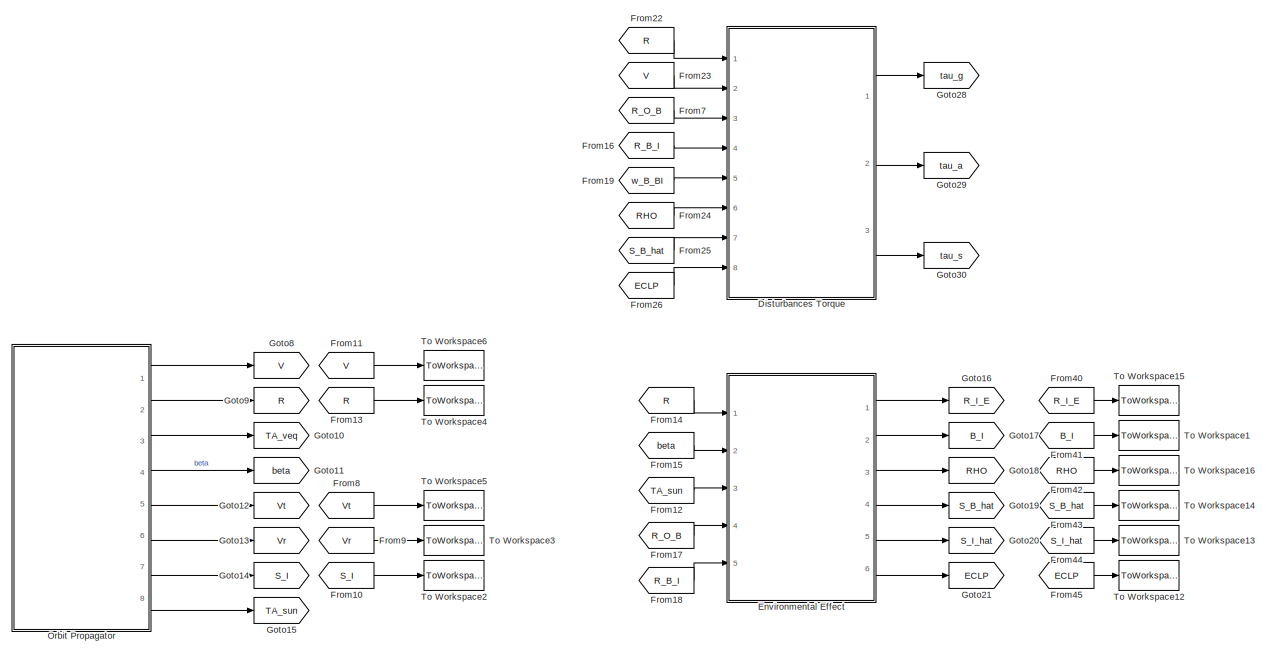
[diagram: root canvas - part 1/3, top center region]
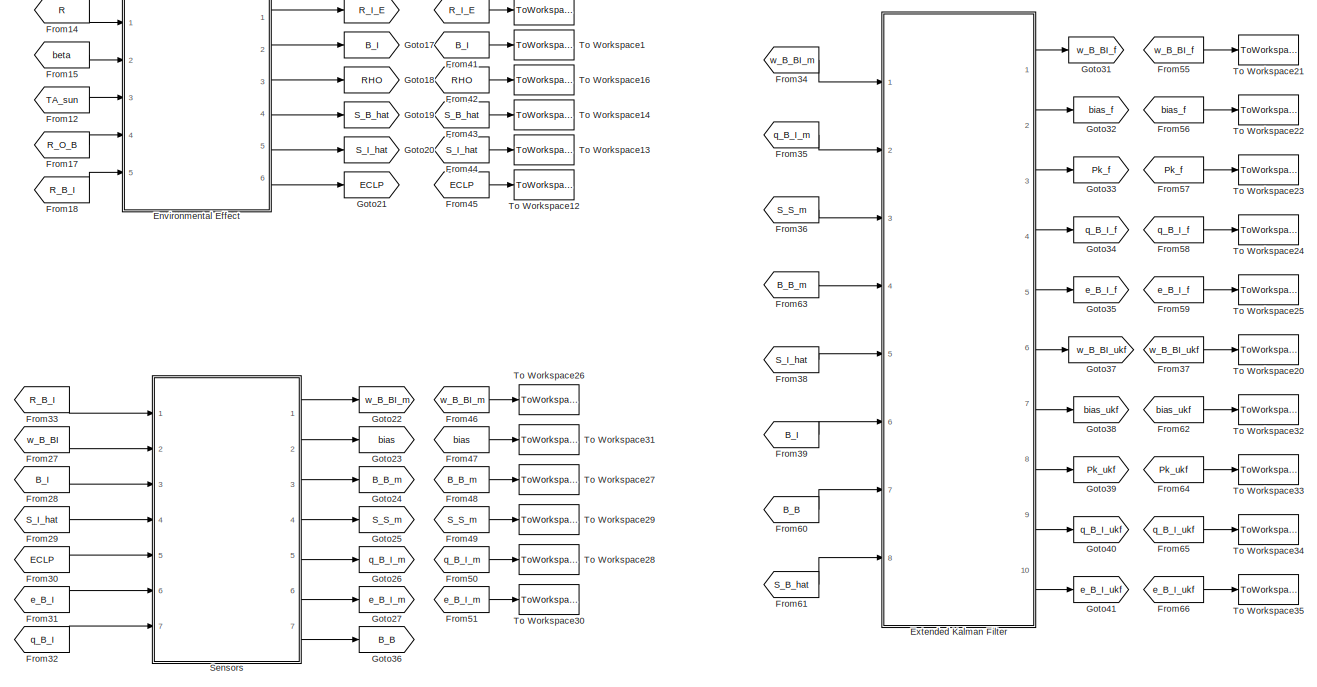
[diagram: root canvas - part 2/3, bottom right region]
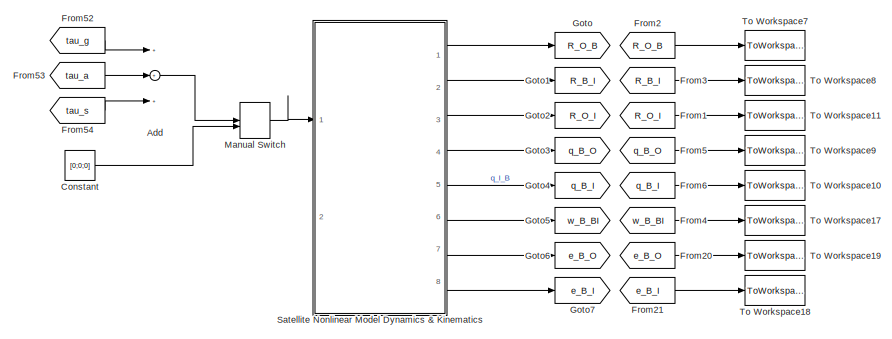
[diagram: root canvas - part 3/3, bottom left region]
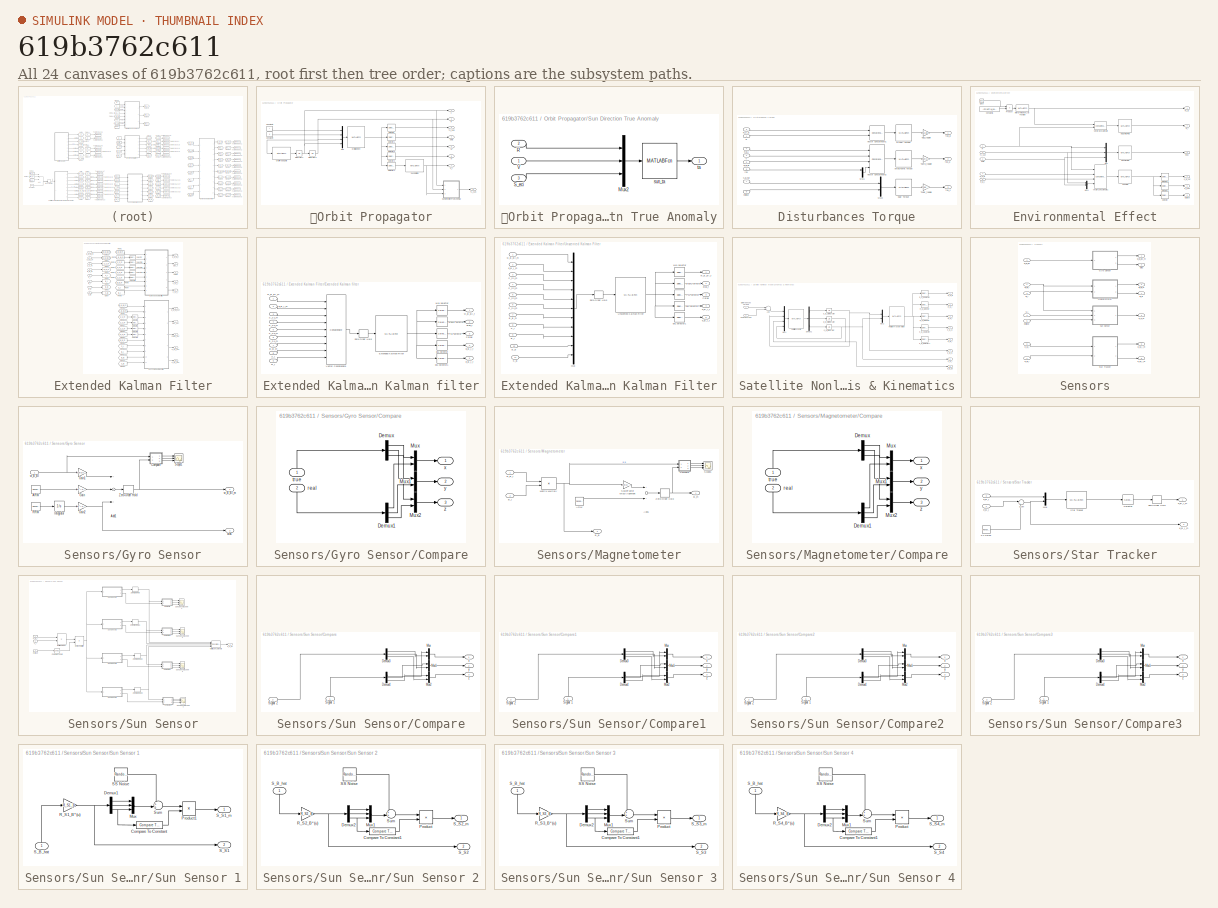
[diagram: thumbnail index - all 24 canvases of the model, root first then tree order]
MODEL slx_619b3762c611
KIND model
CONFIG AbsTol = auto
CONFIG EnableMultiTasking = off
CONFIG FixedStep = dt
CONFIG MaxStep = auto
CONFIG MinStep = auto
CONFIG RelTol = 1e-3
CONFIG SampleTimeConstraint = Unconstrained
CONFIG Solver = FixedStepAuto
CONFIG SolverName = FixedStepAuto
CONFIG StartTime = 0.0
CONFIG StopTime = tdur
BLOCK [SubSystem] 	Orbit Propagator
  Ports = [0, 8]
  RequestExecContextInheritance = off
BLOCK [Constant] 	Orbit Propagator/Constant1
  Value = i
  VectorParams1D = off
BLOCK [Constant] 	Orbit Propagator/Constant4
  Value = e
  VectorParams1D = off
BLOCK [Integrator] 	Orbit Propagator/Integrator2
  InitialCondition = V_0
  Ports = [1, 1]
BLOCK [Integrator] 	Orbit Propagator/Integrator3
  InitialCondition = R_0
  Ports = [1, 1]
BLOCK [Mux] 	Orbit Propagator/Mux
  DisplayOption = bar
  Ports = [4, 1]
BLOCK [MATLABFcn] 	Orbit Propagator/Orbit Element
  MATLABFcn = orbitelement
  Output1D = off
  Ports = [1, 1]
BLOCK [MATLABFcn] 	Orbit Propagator/Orbit Propagate
  MATLABFcn = orbitpropagate
  Output1D = off
  OutputDimensions = [3,1]
  Ports = [1, 1]
BLOCK [Outport] 	Orbit Propagator/R
  IconDisplay = Port number
  Port = 2
BLOCK [Outport] 	Orbit Propagator/S_I 
  IconDisplay = Port number
  Port = 7
BLOCK [Selector] 	Orbit Propagator/Selector
  InputPortWidth = 9
  Ports = [1, 1]
BLOCK [Selector] 	Orbit Propagator/Selector1
  Indices = 2
  InputPortWidth = 9
  Ports = [1, 1]
BLOCK [Selector] 	Orbit Propagator/Selector2
  Indices = [3:5]
  InputPortWidth = 9
  Ports = [1, 1]
BLOCK [Selector] 	Orbit Propagator/Selector3
  Indices = [6:8]
  InputPortWidth = 9
  Ports = [1, 1]
BLOCK [Selector] 	Orbit Propagator/Selector4
  Indices = 9
  InputPortWidth = 9
  Ports = [1, 1]
BLOCK [SubSystem] 	Orbit Propagator/Sun Direction True Anomaly
  Ports = [3, 1]
  RequestExecContextInheritance = off
BLOCK [Mux] 	Orbit Propagator/Sun Direction True Anomaly/Mux2
  DisplayOption = bar
  Inputs = 3
  Ports = [3, 1]
BLOCK [Inport] 	Orbit Propagator/Sun Direction True Anomaly/R
  IconDisplay = Port number
  Port = 2
BLOCK [Inport] 	Orbit Propagator/Sun Direction True Anomaly/S_eci
  IconDisplay = Port number
  Port = 3
BLOCK [Inport] 	Orbit Propagator/Sun Direction True Anomaly/V
  IconDisplay = Port number
BLOCK [MATLABFcn] 	Orbit Propagator/Sun Direction True Anomaly/sun_ta
  MATLABFcn = sun_ta
  Output1D = off
  OutputDimensions = [1,1]
  Ports = [1, 1]
BLOCK [Outport] 	Orbit Propagator/Sun Direction True Anomaly/ta
  IconDisplay = Port number
BLOCK [MATLABFcn] 	Orbit Propagator/Sun Rotation
  MATLABFcn = sun_rotation
  Output1D = off
  OutputDimensions = [3,1]
  Ports = [1, 1]
BLOCK [Outport] 	Orbit Propagator/TA_sun
  IconDisplay = Port number
  Port = 8
BLOCK [Outport] 	Orbit Propagator/TA_veq
  IconDisplay = Port number
  Port = 3
BLOCK [Outport] 	Orbit Propagator/V
  IconDisplay = Port number
BLOCK [Outport] 	Orbit Propagator/Vr
  IconDisplay = Port number
  Port = 6
BLOCK [Outport] 	Orbit Propagator/Vt
  IconDisplay = Port number
  Port = 5
BLOCK [Outport] 	Orbit Propagator/beta
  IconDisplay = Port number
  Port = 4
BLOCK [Sum] Add
  InputSameDT = off
  Inputs = +++
  OutDataTypeStr = Inherit: Inherit via internal rule
  Ports = [3, 1]
  SaturateOnIntegerOverflow = off
BLOCK [Constant] Constant
  Value = [0;0;0]
BLOCK [SubSystem] Disturbances Torque
  Ports = [8, 3]
  RequestExecContextInheritance = off
BLOCK [MATLABFcn] Disturbances Torque/Aerodynamic Torque
  MATLABFcn = aerodynamic_torque
  Output1D = off
  OutputDimensions = [3,1]
  Ports = [1, 1]
BLOCK [MATLABFcn] Disturbances Torque/Gravity Torque
  MATLABFcn = gravity_torque
  Output1D = off
  OutputDimensions = [3,1]
  Ports = [1, 1]
BLOCK [Mux] Disturbances Torque/Mux1
  DisplayOption = bar
  Inputs = 3
  Ports = [3, 1]
BLOCK [Mux] Disturbances Torque/Mux2
  DisplayOption = bar
  Inputs = 2
  Ports = [2, 1]
BLOCK [Inport] Disturbances Torque/R
  IconDisplay = Port number
BLOCK [Inport] Disturbances Torque/R_B_I
  IconDisplay = Port number
  Port = 4
BLOCK [Inport] Disturbances Torque/R_O_B
  IconDisplay = Port number
  Port = 3
BLOCK [Inport] Disturbances Torque/S_B_hat
  IconDisplay = Port number
  Port = 7
BLOCK [MATLABFcn] Disturbances Torque/Solar Torque
  MATLABFcn = solar_torque
  Output1D = off
  OutputDimensions = [3,1]
  Ports = [1, 1]
BLOCK [Gain] Disturbances Torque/Taero_toggle
  Gain = Taero_toggle
  OutDataTypeStr = Inherit: Inherit via internal rule
  ParamDataTypeStr = Inherit: Inherit via internal rule
  SaturateOnIntegerOverflow = off
BLOCK [Gain] Disturbances Torque/Tgg_toggle
  Gain = Tgg_toggle
  OutDataTypeStr = Inherit: Inherit via internal rule
  ParamDataTypeStr = Inherit: Inherit via internal rule
  SaturateOnIntegerOverflow = off
BLOCK [Gain] Disturbances Torque/Tsolar_toggle
  Gain = Tsolar_toggle
  OutDataTypeStr = Inherit: Inherit via internal rule
  ParamDataTypeStr = Inherit: Inherit via internal rule
  SaturateOnIntegerOverflow = off
BLOCK [Inport] Disturbances Torque/V
  IconDisplay = Port number
  Port = 2
BLOCK [Concatenate] Disturbances Torque/Vector Concatenate1
  ConcatenateDimension = 2
  Mode = Multidimensional array
  Ports = [2, 1]
BLOCK [Concatenate] Disturbances Torque/Vector Concatenate2
  ConcatenateDimension = 2
  Mode = Multidimensional array
  NumInputs = 4
  Ports = [4, 1]
BLOCK [Inport] Disturbances Torque/eclipse
  IconDisplay = Port number
  Port = 8
BLOCK [Inport] Disturbances Torque/rho
  IconDisplay = Port number
  Port = 6
BLOCK [Outport] Disturbances Torque/tau_a
  IconDisplay = Port number
  Port = 2
BLOCK [Outport] Disturbances Torque/tau_g
  IconDisplay = Port number
BLOCK [Outport] Disturbances Torque/tau_s
  IconDisplay = Port number
  Port = 3
BLOCK [Inport] Disturbances Torque/w_B_BI
  IconDisplay = Port number
  Port = 5
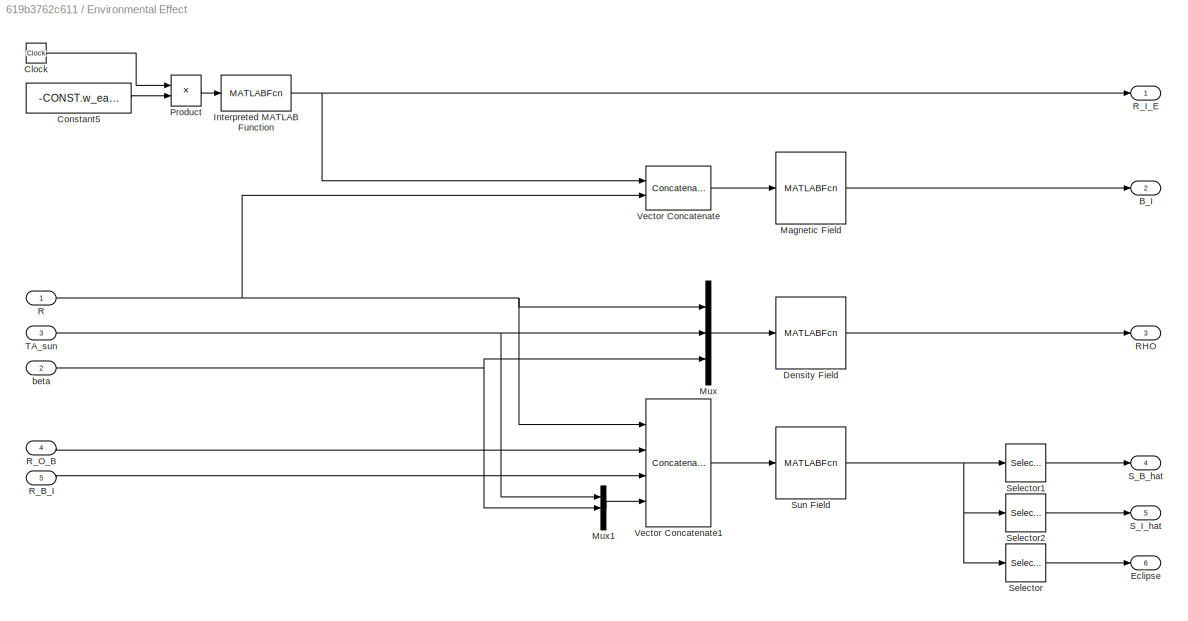
BLOCK [SubSystem] Environmental Effect
  Ports = [5, 6]
  RequestExecContextInheritance = off
BLOCK [Outport] Environmental Effect/B_I
  IconDisplay = Port number
  Port = 2
BLOCK [Clock] Environmental Effect/Clock
BLOCK [Constant] Environmental Effect/Constant5
  Value = -CONST.w_earth(3)
BLOCK [MATLABFcn] Environmental Effect/Density Field
  MATLABFcn = density_field
  Output1D = off
  OutputDimensions = 1
  Ports = [1, 1]
BLOCK [Outport] Environmental Effect/Eclipse
  IconDisplay = Port number
  Port = 6
BLOCK [MATLABFcn] Environmental Effect/Interpreted MATLAB Function
  MATLABFcn = DCM3
  Output1D = off
  OutputDimensions = [3,3]
  Ports = [1, 1]
BLOCK [MATLABFcn] Environmental Effect/Magnetic Field
  MATLABFcn = magnetic_field
  Output1D = off
  OutputDimensions = [3,1]
  Ports = [1, 1]
BLOCK [Mux] Environmental Effect/Mux
  DisplayOption = bar
  Inputs = 3
  Ports = [3, 1]
BLOCK [Mux] Environmental Effect/Mux1
  DisplayOption = bar
  Inputs = 3
  Ports = [3, 1]
BLOCK [Product] Environmental Effect/Product
  InputSameDT = off
  OutDataTypeStr = Inherit: Inherit via internal rule
  Ports = [2, 1]
  RndMeth = Floor
  SaturateOnIntegerOverflow = off
BLOCK [Inport] Environmental Effect/R
  IconDisplay = Port number
BLOCK [Outport] Environmental Effect/RHO
  IconDisplay = Port number
  Port = 3
BLOCK [Inport] Environmental Effect/R_B_I
  IconDisplay = Port number
  Port = 5
BLOCK [Outport] Environmental Effect/R_I_E
  IconDisplay = Port number
BLOCK [Inport] Environmental Effect/R_O_B
  IconDisplay = Port number
  Port = 4
BLOCK [Outport] Environmental Effect/S_B_hat
  IconDisplay = Port number
  Port = 4
BLOCK [Outport] Environmental Effect/S_I_hat
  IconDisplay = Port number
  Port = 5
BLOCK [Selector] Environmental Effect/Selector
  IndexOptions = Index vector (dialog),Index vector (dialog)
  Indices = 3,3
  InputPortWidth = 3
  NumberOfDimensions = 2
  OutputSizes = 1,1
  Ports = [1, 1]
BLOCK [Selector] Environmental Effect/Selector1
  IndexOptions = Index vector (dialog),Index vector (dialog)
  Indices = [1:3],1
  InputPortWidth = 3
  NumberOfDimensions = 2
  OutputSizes = 1,1
  Ports = [1, 1]
BLOCK [Selector] Environmental Effect/Selector2
  IndexOptions = Index vector (dialog),Index vector (dialog)
  Indices = [1:3],2
  InputPortWidth = 3
  NumberOfDimensions = 2
  OutputSizes = 1,1
  Ports = [1, 1]
BLOCK [MATLABFcn] Environmental Effect/Sun Field
  MATLABFcn = sun_field
  Output1D = off
  OutputDimensions = [3,3]
  Ports = [1, 1]
BLOCK [Inport] Environmental Effect/TA_sun
  IconDisplay = Port number
  Port = 3
BLOCK [Concatenate] Environmental Effect/Vector Concatenate
  ConcatenateDimension = 2
  Mode = Multidimensional array
  Ports = [2, 1]
BLOCK [Concatenate] Environmental Effect/Vector Concatenate1
  ConcatenateDimension = 2
  Mode = Multidimensional array
  NumInputs = 4
  Ports = [4, 1]
BLOCK [Inport] Environmental Effect/beta
  IconDisplay = Port number
  Port = 2
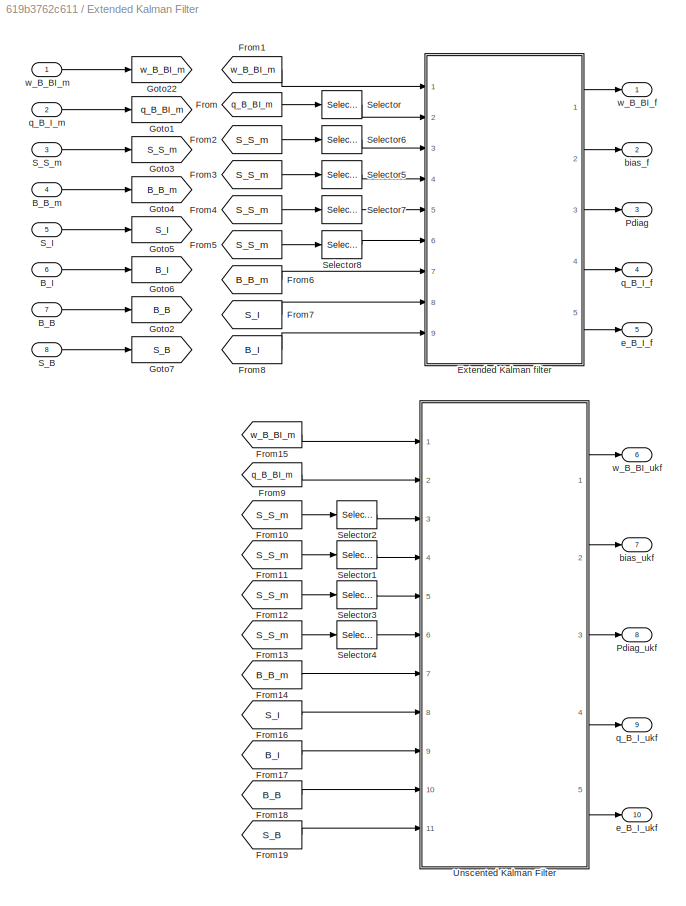
BLOCK [SubSystem] Extended Kalman Filter
  Ports = [8, 10]
  RequestExecContextInheritance = off
BLOCK [Inport] Extended Kalman Filter/B_B
  IconDisplay = Port number
  Port = 7
BLOCK [Inport] Extended Kalman Filter/B_B_m
  IconDisplay = Port number
  Port = 4
BLOCK [Inport] Extended Kalman Filter/B_I
  IconDisplay = Port number
  Port = 6
BLOCK [SubSystem] Extended Kalman Filter/Extended Kalman filter
  Ports = [9, 5]
  RequestExecContextInheritance = off
BLOCK [Inport] Extended Kalman Filter/Extended Kalman filter/B_B_m
  IconDisplay = Port number
  Port = 7
BLOCK [Inport] Extended Kalman Filter/Extended Kalman filter/B_I
  IconDisplay = Port number
  Port = 9
BLOCK [MATLABFcn] Extended Kalman Filter/Extended Kalman filter/Extended Kalman Filter
  MATLABFcn = extended_kalman_filter
  Output1D = off
  OutputDimensions = [6,9]
  Ports = [1, 1]
BLOCK [Outport] Extended Kalman Filter/Extended Kalman filter/Pdiag
  IconDisplay = Port number
  Port = 3
BLOCK [Selector] Extended Kalman Filter/Extended Kalman filter/Pk1 selector
  IndexOptions = Index vector (dialog),Index vector (dialog)
  Indices = [1:6],[2:7]
  InputPortWidth = 3
  NumberOfDimensions = 2
  OutputSizes = 1,1
  Ports = [1, 1]
BLOCK [Inport] Extended Kalman Filter/Extended Kalman filter/S_I
  IconDisplay = Port number
  Port = 8
BLOCK [Inport] Extended Kalman Filter/Extended Kalman filter/S_S1_m
  IconDisplay = Port number
  Port = 3
BLOCK [Inport] Extended Kalman Filter/Extended Kalman filter/S_S2_m
  IconDisplay = Port number
  Port = 4
BLOCK [Inport] Extended Kalman Filter/Extended Kalman filter/S_S3_m
  IconDisplay = Port number
  Port = 5
BLOCK [Inport] Extended Kalman Filter/Extended Kalman filter/S_S4_m
  IconDisplay = Port number
  Port = 6
BLOCK [Concatenate] Extended Kalman Filter/Extended Kalman filter/Vector Concatenate
  ConcatenateDimension = 2
  Mode = Multidimensional array
  NumInputs = 9
  Ports = [9, 1]
BLOCK [ZeroOrderHold] Extended Kalman Filter/Extended Kalman filter/Zero-Order Hold
  SampleTime = dt
BLOCK [Outport] Extended Kalman Filter/Extended Kalman filter/bias_f
  IconDisplay = Port number
  Port = 2
BLOCK [Selector] Extended Kalman Filter/Extended Kalman filter/biask1 selector
  IndexOptions = Index vector (dialog),Index vector (dialog)
  Indices = [4:6],1
  InputPortWidth = 3
  NumberOfDimensions = 2
  OutputSizes = 1,1
  Ports = [1, 1]
BLOCK [Outport] Extended Kalman Filter/Extended Kalman filter/e_B_I_f
  IconDisplay = Port number
  Port = 5
BLOCK [Outport] Extended Kalman Filter/Extended Kalman filter/q_B_I_f
  IconDisplay = Port number
  Port = 4
BLOCK [Inport] Extended Kalman Filter/Extended Kalman filter/q_B_I_m
  IconDisplay = Port number
  Port = 2
BLOCK [Selector] Extended Kalman Filter/Extended Kalman filter/qk1 selector
  IndexOptions = Index vector (dialog),Index vector (dialog)
  Indices = [1:4],8
  InputPortWidth = 3
  NumberOfDimensions = 2
  OutputSizes = 1,1
  Ports = [1, 1]
BLOCK [Selector] Extended Kalman Filter/Extended Kalman filter/qk1 selector1
  IndexOptions = Index vector (dialog),Index vector (dialog)
  Indices = [1:3],9
  InputPortWidth = 3
  NumberOfDimensions = 2
  OutputSizes = 1,1
  Ports = [1, 1]
BLOCK [Outport] Extended Kalman Filter/Extended Kalman filter/w_B_BI_f
  IconDisplay = Port number
BLOCK [Inport] Extended Kalman Filter/Extended Kalman filter/w_B_BI_m
  IconDisplay = Port number
BLOCK [Selector] Extended Kalman Filter/Extended Kalman filter/wk1 selector
  IndexOptions = Index vector (dialog),Index vector (dialog)
  Indices = [1:3],1
  InputPortWidth = 3
  NumberOfDimensions = 2
  OutputSizes = 1,1
  Ports = [1, 1]
BLOCK [From] Extended Kalman Filter/From
  GotoTag = q_B_BI_m
BLOCK [From] Extended Kalman Filter/From1
  GotoTag = w_B_BI_m
BLOCK [From] Extended Kalman Filter/From10
  GotoTag = S_S_m
BLOCK [From] Extended Kalman Filter/From11
  GotoTag = S_S_m
BLOCK [From] Extended Kalman Filter/From12
  GotoTag = S_S_m
BLOCK [From] Extended Kalman Filter/From13
  GotoTag = S_S_m
BLOCK [From] Extended Kalman Filter/From14
  GotoTag = B_B_m
BLOCK [From] Extended Kalman Filter/From15
  GotoTag = w_B_BI_m
BLOCK [From] Extended Kalman Filter/From16
  GotoTag = S_I
BLOCK [From] Extended Kalman Filter/From17
  GotoTag = B_I
BLOCK [From] Extended Kalman Filter/From18
  GotoTag = B_B
BLOCK [From] Extended Kalman Filter/From19
  GotoTag = S_B
BLOCK [From] Extended Kalman Filter/From2
  GotoTag = S_S_m
BLOCK [From] Extended Kalman Filter/From3
  GotoTag = S_S_m
BLOCK [From] Extended Kalman Filter/From4
  GotoTag = S_S_m
BLOCK [From] Extended Kalman Filter/From5
  GotoTag = S_S_m
BLOCK [From] Extended Kalman Filter/From6
  GotoTag = B_B_m
BLOCK [From] Extended Kalman Filter/From7
  GotoTag = S_I
BLOCK [From] Extended Kalman Filter/From8
  GotoTag = B_I
BLOCK [From] Extended Kalman Filter/From9
  GotoTag = q_B_BI_m
BLOCK [Goto] Extended Kalman Filter/Goto1
  GotoTag = q_B_BI_m
BLOCK [Goto] Extended Kalman Filter/Goto2
  GotoTag = B_B
BLOCK [Goto] Extended Kalman Filter/Goto22
  GotoTag = w_B_BI_m
BLOCK [Goto] Extended Kalman Filter/Goto3
  GotoTag = S_S_m
BLOCK [Goto] Extended Kalman Filter/Goto4
  GotoTag = B_B_m
BLOCK [Goto] Extended Kalman Filter/Goto5
  GotoTag = S_I
BLOCK [Goto] Extended Kalman Filter/Goto6
  GotoTag = B_I
BLOCK [Goto] Extended Kalman Filter/Goto7
  GotoTag = S_B
BLOCK [Outport] Extended Kalman Filter/Pdiag
  IconDisplay = Port number
  Port = 3
BLOCK [Outport] Extended Kalman Filter/Pdiag_ukf
  IconDisplay = Port number
  Port = 8
BLOCK [Inport] Extended Kalman Filter/S_B
  IconDisplay = Port number
  Port = 8
BLOCK [Inport] Extended Kalman Filter/S_I
  IconDisplay = Port number
  Port = 5
BLOCK [Inport] Extended Kalman Filter/S_S_m
  IconDisplay = Port number
  Port = 3
BLOCK [Selector] Extended Kalman Filter/Selector
  Indices = [2:4]
  InputPortWidth = 4
  Ports = [1, 1]
BLOCK [Selector] Extended Kalman Filter/Selector1
  IndexOptions = Index vector (dialog),Index vector (dialog)
  Indices = [1:3],2
  InputPortWidth = 4
  NumberOfDimensions = 2
  OutputSizes = 1,1
  Ports = [1, 1]
BLOCK [Selector] Extended Kalman Filter/Selector2
  IndexOptions = Index vector (dialog),Index vector (dialog)
  Indices = [1:3],1
  InputPortWidth = 4
  NumberOfDimensions = 2
  OutputSizes = 1,1
  Ports = [1, 1]
BLOCK [Selector] Extended Kalman Filter/Selector3
  IndexOptions = Index vector (dialog),Index vector (dialog)
  Indices = [1:3],3
  InputPortWidth = 4
  NumberOfDimensions = 2
  OutputSizes = 1,1
  Ports = [1, 1]
BLOCK [Selector] Extended Kalman Filter/Selector4
  IndexOptions = Index vector (dialog),Index vector (dialog)
  Indices = [1:3],4
  InputPortWidth = 4
  NumberOfDimensions = 2
  OutputSizes = 1,1
  Ports = [1, 1]
BLOCK [Selector] Extended Kalman Filter/Selector5
  IndexOptions = Index vector (dialog),Index vector (dialog)
  Indices = [1:3],2
  InputPortWidth = 4
  NumberOfDimensions = 2
  OutputSizes = 1,1
  Ports = [1, 1]
BLOCK [Selector] Extended Kalman Filter/Selector6
  IndexOptions = Index vector (dialog),Index vector (dialog)
  Indices = [1:3],1
  InputPortWidth = 4
  NumberOfDimensions = 2
  OutputSizes = 1,1
  Ports = [1, 1]
BLOCK [Selector] Extended Kalman Filter/Selector7
  IndexOptions = Index vector (dialog),Index vector (dialog)
  Indices = [1:3],3
  InputPortWidth = 4
  NumberOfDimensions = 2
  OutputSizes = 1,1
  Ports = [1, 1]
BLOCK [Selector] Extended Kalman Filter/Selector8
  IndexOptions = Index vector (dialog),Index vector (dialog)
  Indices = [1:3],4
  InputPortWidth = 4
  NumberOfDimensions = 2
  OutputSizes = 1,1
  Ports = [1, 1]
BLOCK [SubSystem] Extended Kalman Filter/Unscented Kalman Filter
  Ports = [11, 5]
  RequestExecContextInheritance = off
BLOCK [Inport] Extended Kalman Filter/Unscented Kalman Filter/B_B
  IconDisplay = Port number
  Port = 10
BLOCK [Inport] Extended Kalman Filter/Unscented Kalman Filter/B_B_m
  IconDisplay = Port number
  Port = 7
BLOCK [Inport] Extended Kalman Filter/Unscented Kalman Filter/B_I
  IconDisplay = Port number
  Port = 9
BLOCK [Mux] Extended Kalman Filter/Unscented Kalman Filter/Mux
  DisplayOption = bar
  Inputs = 11
  Ports = [11, 1]
BLOCK [Outport] Extended Kalman Filter/Unscented Kalman Filter/Pdiag
  IconDisplay = Port number
  Port = 3
BLOCK [Selector] Extended Kalman Filter/Unscented Kalman Filter/Pk1 selector
  IndexOptions = Index vector (dialog),Index vector (dialog)
  Indices = [1:6],[2:7]
  InputPortWidth = 3
  NumberOfDimensions = 2
  OutputSizes = 1,1
  Ports = [1, 1]
BLOCK [Inport] Extended Kalman Filter/Unscented Kalman Filter/S_B 
  IconDisplay = Port number
  Port = 11
BLOCK [Inport] Extended Kalman Filter/Unscented Kalman Filter/S_I
  IconDisplay = Port number
  Port = 8
BLOCK [Inport] Extended Kalman Filter/Unscented Kalman Filter/S_S1_m
  IconDisplay = Port number
  Port = 3
BLOCK [Inport] Extended Kalman Filter/Unscented Kalman Filter/S_S2_m
  IconDisplay = Port number
  Port = 4
BLOCK [Inport] Extended Kalman Filter/Unscented Kalman Filter/S_S3_m
  IconDisplay = Port number
  Port = 5
BLOCK [Inport] Extended Kalman Filter/Unscented Kalman Filter/S_S4_m
  IconDisplay = Port number
  Port = 6
BLOCK [MATLABFcn] Extended Kalman Filter/Unscented Kalman Filter/Unscented Kalman Filter
  MATLABFcn = unscented_kalman_filter
  Output1D = off
  OutputDimensions = [6,9]
  Ports = [1, 1]
  SampleTime = dt
BLOCK [ZeroOrderHold] Extended Kalman Filter/Unscented Kalman Filter/Zero-Order Hold
  SampleTime = dt
BLOCK [Outport] Extended Kalman Filter/Unscented Kalman Filter/bias_f
  IconDisplay = Port number
  Port = 2
BLOCK [Selector] Extended Kalman Filter/Unscented Kalman Filter/biask1 selector
  IndexOptions = Index vector (dialog),Index vector (dialog)
  Indices = [4:6],1
  InputPortWidth = 3
  NumberOfDimensions = 2
  OutputSizes = 1,1
  Ports = [1, 1]
BLOCK [Outport] Extended Kalman Filter/Unscented Kalman Filter/e_B_I_f
  IconDisplay = Port number
  Port = 5
BLOCK [Outport] Extended Kalman Filter/Unscented Kalman Filter/q_B_I_f
  IconDisplay = Port number
  Port = 4
BLOCK [Inport] Extended Kalman Filter/Unscented Kalman Filter/q_B_I_m
  IconDisplay = Port number
  Port = 2
BLOCK [Selector] Extended Kalman Filter/Unscented Kalman Filter/qk1 selector
  IndexOptions = Index vector (dialog),Index vector (dialog)
  Indices = [1:4],8
  InputPortWidth = 3
  NumberOfDimensions = 2
  OutputSizes = 1,1
  Ports = [1, 1]
BLOCK [Selector] Extended Kalman Filter/Unscented Kalman Filter/qk1 selector1
  IndexOptions = Index vector (dialog),Index vector (dialog)
  Indices = [1:3],9
  InputPortWidth = 3
  NumberOfDimensions = 2
  OutputSizes = 1,1
  Ports = [1, 1]
BLOCK [Outport] Extended Kalman Filter/Unscented Kalman Filter/w_B_BI_f
  IconDisplay = Port number
BLOCK [Inport] Extended Kalman Filter/Unscented Kalman Filter/w_B_BI_m
  IconDisplay = Port number
BLOCK [Selector] Extended Kalman Filter/Unscented Kalman Filter/wk1 selector
  IndexOptions = Index vector (dialog),Index vector (dialog)
  Indices = [1:3],1
  InputPortWidth = 3
  NumberOfDimensions = 2
  OutputSizes = 1,1
  Ports = [1, 1]
BLOCK [Outport] Extended Kalman Filter/bias_f
  IconDisplay = Port number
  Port = 2
BLOCK [Outport] Extended Kalman Filter/bias_ukf
  IconDisplay = Port number
  Port = 7
BLOCK [Outport] Extended Kalman Filter/e_B_I_f
  IconDisplay = Port number
  Port = 5
BLOCK [Outport] Extended Kalman Filter/e_B_I_ukf
  IconDisplay = Port number
  Port = 10
BLOCK [Outport] Extended Kalman Filter/q_B_I_f
  IconDisplay = Port number
  Port = 4
BLOCK [Inport] Extended Kalman Filter/q_B_I_m
  IconDisplay = Port number
  Port = 2
BLOCK [Outport] Extended Kalman Filter/q_B_I_ukf
  IconDisplay = Port number
  Port = 9
BLOCK [Outport] Extended Kalman Filter/w_B_BI_f
  IconDisplay = Port number
BLOCK [Inport] Extended Kalman Filter/w_B_BI_m
  IconDisplay = Port number
BLOCK [Outport] Extended Kalman Filter/w_B_BI_ukf
  IconDisplay = Port number
  Port = 6
BLOCK [From] From1
  GotoTag = R_O_I
BLOCK [From] From10
  GotoTag = S_I
BLOCK [From] From11
  GotoTag = V
BLOCK [From] From12
  GotoTag = TA_sun
BLOCK [From] From13
  GotoTag = R
BLOCK [From] From14
  GotoTag = R
BLOCK [From] From15
  GotoTag = beta
BLOCK [From] From16
  GotoTag = R_B_I
BLOCK [From] From17
  GotoTag = R_O_B
BLOCK [From] From18
  GotoTag = R_B_I
BLOCK [From] From19
  GotoTag = w_B_BI
BLOCK [From] From2
  GotoTag = R_O_B
BLOCK [From] From20
  GotoTag = e_B_O
BLOCK [From] From21
  GotoTag = e_B_I
BLOCK [From] From22
  GotoTag = R
BLOCK [From] From23
  GotoTag = V
BLOCK [From] From24
  GotoTag = RHO
BLOCK [From] From25
  GotoTag = S_B_hat
BLOCK [From] From26
  GotoTag = ECLP
BLOCK [From] From27
  GotoTag = w_B_BI
BLOCK [From] From28
  GotoTag = B_I
BLOCK [From] From29
  GotoTag = S_I_hat
BLOCK [From] From3
  GotoTag = R_B_I
BLOCK [From] From30
  GotoTag = ECLP
BLOCK [From] From31
  GotoTag = e_B_I
BLOCK [From] From32
  GotoTag = q_B_I
BLOCK [From] From33
  GotoTag = R_B_I
BLOCK [From] From34
  GotoTag = w_B_BI_m
BLOCK [From] From35
  GotoTag = q_B_I_m
BLOCK [From] From36
  GotoTag = S_S_m
BLOCK [From] From37
  GotoTag = w_B_BI_ukf
BLOCK [From] From38
  GotoTag = S_I_hat
BLOCK [From] From39
  GotoTag = B_I
BLOCK [From] From4
  GotoTag = w_B_BI
BLOCK [From] From40
  GotoTag = R_I_E
BLOCK [From] From41
  GotoTag = B_I
BLOCK [From] From42
  GotoTag = RHO
BLOCK [From] From43
  GotoTag = S_B_hat
BLOCK [From] From44
  GotoTag = S_I_hat
BLOCK [From] From45
  GotoTag = ECLP
BLOCK [From] From46
  GotoTag = w_B_BI_m
BLOCK [From] From47
  GotoTag = bias
BLOCK [From] From48
  GotoTag = B_B_m
BLOCK [From] From49
  GotoTag = S_S_m
BLOCK [From] From5
  GotoTag = q_B_O
BLOCK [From] From50
  GotoTag = q_B_I_m
BLOCK [From] From51
  GotoTag = e_B_I_m
BLOCK [From] From52
  GotoTag = tau_g
BLOCK [From] From53
  GotoTag = tau_a
BLOCK [From] From54
  GotoTag = tau_s
BLOCK [From] From55
  GotoTag = w_B_BI_f
BLOCK [From] From56
  GotoTag = bias_f
BLOCK [From] From57
  GotoTag = Pk_f
BLOCK [From] From58
  GotoTag = q_B_I_f
BLOCK [From] From59
  GotoTag = e_B_I_f
BLOCK [From] From6
  GotoTag = q_B_I
BLOCK [From] From60
  GotoTag = B_B
BLOCK [From] From61
  GotoTag = S_B_hat
BLOCK [From] From62
  GotoTag = bias_ukf
BLOCK [From] From63
  GotoTag = B_B_m
BLOCK [From] From64
  GotoTag = Pk_ukf
BLOCK [From] From65
  GotoTag = q_B_I_ukf
BLOCK [From] From66
  GotoTag = e_B_I_ukf
BLOCK [From] From7
  GotoTag = R_O_B
BLOCK [From] From8
  GotoTag = Vt
BLOCK [From] From9
  GotoTag = Vr
BLOCK [Goto] Goto
  GotoTag = R_O_B
BLOCK [Goto] Goto1
  GotoTag = R_B_I
BLOCK [Goto] Goto10
  GotoTag = TA_veq
BLOCK [Goto] Goto11
  GotoTag = beta
BLOCK [Goto] Goto12
  GotoTag = Vt
BLOCK [Goto] Goto13
  GotoTag = Vr
BLOCK [Goto] Goto14
  GotoTag = S_I
BLOCK [Goto] Goto15
  GotoTag = TA_sun
BLOCK [Goto] Goto16
  GotoTag = R_I_E
BLOCK [Goto] Goto17
  GotoTag = B_I
BLOCK [Goto] Goto18
  GotoTag = RHO
BLOCK [Goto] Goto19
  GotoTag = S_B_hat
BLOCK [Goto] Goto2
  GotoTag = R_O_I
BLOCK [Goto] Goto20
  GotoTag = S_I_hat
BLOCK [Goto] Goto21
  GotoTag = ECLP
BLOCK [Goto] Goto22
  GotoTag = w_B_BI_m
BLOCK [Goto] Goto23
  GotoTag = bias
BLOCK [Goto] Goto24
  GotoTag = B_B_m
BLOCK [Goto] Goto25
  GotoTag = S_S_m
BLOCK [Goto] Goto26
  GotoTag = q_B_I_m
BLOCK [Goto] Goto27
  GotoTag = e_B_I_m
BLOCK [Goto] Goto28
  GotoTag = tau_g
BLOCK [Goto] Goto29
  GotoTag = tau_a
BLOCK [Goto] Goto3
  GotoTag = q_B_O
BLOCK [Goto] Goto30
  GotoTag = tau_s
BLOCK [Goto] Goto31
  GotoTag = w_B_BI_f
BLOCK [Goto] Goto32
  GotoTag = bias_f
BLOCK [Goto] Goto33
  GotoTag = Pk_f
BLOCK [Goto] Goto34
  GotoTag = q_B_I_f
BLOCK [Goto] Goto35
  GotoTag = e_B_I_f
BLOCK [Goto] Goto36
  GotoTag = B_B
BLOCK [Goto] Goto37
  GotoTag = w_B_BI_ukf
BLOCK [Goto] Goto38
  GotoTag = bias_ukf
BLOCK [Goto] Goto39
  GotoTag = Pk_ukf
BLOCK [Goto] Goto4
  GotoTag = q_B_I
BLOCK [Goto] Goto40
  GotoTag = q_B_I_ukf
BLOCK [Goto] Goto41
  GotoTag = e_B_I_ukf
BLOCK [Goto] Goto5
  GotoTag = w_B_BI
BLOCK [Goto] Goto6
  GotoTag = e_B_O
BLOCK [Goto] Goto7
  GotoTag = e_B_I
BLOCK [Goto] Goto8
  GotoTag = V
BLOCK [Goto] Goto9
  GotoTag = R
BLOCK [ManualSwitch] Manual Switch
BLOCK [SubSystem] Satellite Nonlinear Model Dynamics & Kinematics
  Ports = [2, 8]
  RequestExecContextInheritance = off
BLOCK [Integrator] Satellite Nonlinear Model Dynamics & Kinematics/ w_B_BI Integrator
  InitialCondition = w_B_BI_0
  Ports = [1, 1]
BLOCK [Sum] Satellite Nonlinear Model Dynamics & Kinematics/Add
  InputSameDT = off
  OutDataTypeStr = Inherit: Inherit via internal rule
  Ports = [2, 1]
  SaturateOnIntegerOverflow = off
BLOCK [Inport] Satellite Nonlinear Model Dynamics & Kinematics/Control Torque
  IconDisplay = Port number
  Port = 2
BLOCK [Demux] Satellite Nonlinear Model Dynamics & Kinematics/Demux2
  DisplayOption = bar
  Outputs = [4 3 4]
  Ports = [1, 3]
BLOCK [Inport] Satellite Nonlinear Model Dynamics & Kinematics/Disturbances Torque
  IconDisplay = Port number
BLOCK [Mux] Satellite Nonlinear Model Dynamics & Kinematics/Mux1
  DisplayOption = bar
  Inputs = [3 4 3 4]
  Ports = [4, 1]
BLOCK [Mux] Satellite Nonlinear Model Dynamics & Kinematics/Mux2
  DisplayOption = bar
  Inputs = [4 4]
  Ports = [2, 1]
BLOCK [Outport] Satellite Nonlinear Model Dynamics & Kinematics/R_B_I
  IconDisplay = Port number
  Port = 2
BLOCK [Selector] Satellite Nonlinear Model Dynamics & Kinematics/R_B_I Selector
  IndexOptions = Index vector (dialog),Index vector (dialog)
  Indices = [1:3],[4:6]
  InputPortWidth = 3
  NumberOfDimensions = 2
  OutputSizes = 1,1
  Ports = [1, 1]
BLOCK [Outport] Satellite Nonlinear Model Dynamics & Kinematics/R_O_B
  IconDisplay = Port number
BLOCK [Selector] Satellite Nonlinear Model Dynamics & Kinematics/R_O_B Selector
  IndexOptions = Index vector (dialog),Index vector (dialog)
  Indices = [1:3],[1:3]
  InputPortWidth = 3
  NumberOfDimensions = 2
  OutputSizes = 1,1
  Ports = [1, 1]
BLOCK [Outport] Satellite Nonlinear Model Dynamics & Kinematics/R_O_I
  IconDisplay = Port number
  Port = 3
BLOCK [Selector] Satellite Nonlinear Model Dynamics & Kinematics/R_O_I Selector
  IndexOptions = Index vector (dialog),Index vector (dialog)
  Indices = [1:3],[7:9]
  InputPortWidth = 3
  NumberOfDimensions = 2
  OutputSizes = 1,1
  Ports = [1, 1]
BLOCK [MATLABFcn] Satellite Nonlinear Model Dynamics & Kinematics/Rotation Transformation
  MATLABFcn = rotation_quaternion
  Output1D = off
  OutputDimensions = [3,11]
  Ports = [1, 1]
BLOCK [MATLABFcn] Satellite Nonlinear Model Dynamics & Kinematics/Satellite Dynamic
  MATLABFcn = satellite_dynamics
  Output1D = off
  OutputDimensions = [11,1]
  Ports = [1, 1]
BLOCK [Outport] Satellite Nonlinear Model Dynamics & Kinematics/e_B_I
  IconDisplay = Port number
  Port = 8
BLOCK [Selector] Satellite Nonlinear Model Dynamics & Kinematics/e_B_I Selector1
  IndexOptions = Index vector (dialog),Index vector (dialog)
  Indices = [1:3],11
  InputPortWidth = 3
  NumberOfDimensions = 2
  OutputSizes = 1,1
  Ports = [1, 1]
BLOCK [Outport] Satellite Nonlinear Model Dynamics & Kinematics/e_B_O
  IconDisplay = Port number
  Port = 7
BLOCK [Selector] Satellite Nonlinear Model Dynamics & Kinematics/e_B_O Selector
  IndexOptions = Index vector (dialog),Index vector (dialog)
  Indices = [1:3],10
  InputPortWidth = 3
  NumberOfDimensions = 2
  OutputSizes = 1,1
  Ports = [1, 1]
BLOCK [Outport] Satellite Nonlinear Model Dynamics & Kinematics/q_B_I
  IconDisplay = Port number
  Port = 5
BLOCK [Integrator] Satellite Nonlinear Model Dynamics & Kinematics/q_B_I Integrator
  InitialCondition = q_B_I_0
  Ports = [1, 1]
BLOCK [Outport] Satellite Nonlinear Model Dynamics & Kinematics/q_B_O
  IconDisplay = Port number
  Port = 4
BLOCK [Integrator] Satellite Nonlinear Model Dynamics & Kinematics/q_B_O Integrator
  InitialCondition = q_B_O_0
  Ports = [1, 1]
BLOCK [Outport] Satellite Nonlinear Model Dynamics & Kinematics/w_B_BI
  IconDisplay = Port number
  Port = 6
BLOCK [SubSystem] Sensors
  Ports = [7, 7]
  RequestExecContextInheritance = off
BLOCK [Outport] Sensors/B_B
  IconDisplay = Port number
  Port = 7
BLOCK [Outport] Sensors/B_B_m
  IconDisplay = Port number
  Port = 3
BLOCK [Inport] Sensors/B_I
  IconDisplay = Port number
  Port = 3
BLOCK [SubSystem] Sensors/Gyro Sensor
  Ports = [1, 2]
  RequestExecContextInheritance = off
BLOCK [RandomNumber] Sensors/Gyro Sensor/ARW
  SampleTime = dt
  Variance = [ARW;ARW;ARW]
  VectorParams1D = off
BLOCK [Sum] Sensors/Gyro Sensor/Add1
  InputSameDT = off
  Inputs = +++
  OutDataTypeStr = Inherit: Inherit via internal rule
  Ports = [3, 1]
  SaturateOnIntegerOverflow = off
BLOCK [SubSystem] Sensors/Gyro Sensor/Compare
  Ports = [2, 3]
  RequestExecContextInheritance = off
BLOCK [Demux] Sensors/Gyro Sensor/Compare/Demux
  DisplayOption = bar
  Outputs = 3
  Ports = [1, 3]
BLOCK [Demux] Sensors/Gyro Sensor/Compare/Demux1
  DisplayOption = bar
  Outputs = 3
  Ports = [1, 3]
BLOCK [Mux] Sensors/Gyro Sensor/Compare/Mux
  DisplayOption = bar
  Inputs = 2
  Ports = [2, 1]
BLOCK [Mux] Sensors/Gyro Sensor/Compare/Mux1
  DisplayOption = bar
  Inputs = 2
  Ports = [2, 1]
BLOCK [Mux] Sensors/Gyro Sensor/Compare/Mux2
  DisplayOption = bar
  Inputs = 2
  Ports = [2, 1]
BLOCK [Inport] Sensors/Gyro Sensor/Compare/real
  IconDisplay = Port number
  Port = 2
BLOCK [Inport] Sensors/Gyro Sensor/Compare/true
  IconDisplay = Port number
BLOCK [Outport] Sensors/Gyro Sensor/Compare/x
  IconDisplay = Port number
BLOCK [Outport] Sensors/Gyro Sensor/Compare/y
  IconDisplay = Port number
  Port = 2
BLOCK [Outport] Sensors/Gyro Sensor/Compare/z
  IconDisplay = Port number
  Port = 3
BLOCK [Gain] Sensors/Gyro Sensor/Gain
  Gain = dt^(-0.5)
  OutDataTypeStr = Inherit: Inherit via internal rule
  ParamDataTypeStr = Inherit: Inherit via internal rule
  SaturateOnIntegerOverflow = off
BLOCK [Gain] Sensors/Gyro Sensor/Gain1
  Gain = eye(3)+Gg
  Multiplication = Matrix(K*u)
  OutDataTypeStr = Inherit: Inherit via internal rule
  ParamDataTypeStr = Inherit: Inherit via internal rule
  SaturateOnIntegerOverflow = off
BLOCK [Gain] Sensors/Gyro Sensor/Gain2
  Gain = dt^(-0.5)
  OutDataTypeStr = Inherit: Inherit via internal rule
  ParamDataTypeStr = Inherit: Inherit via internal rule
  SaturateOnIntegerOverflow = off
BLOCK [Integrator] Sensors/Gyro Sensor/Integrator
  InitialCondition = GYRO_Bias
  Ports = [1, 1]
BLOCK [RandomNumber] Sensors/Gyro Sensor/RRW
  SampleTime = dt
  Variance = [RRW;RRW;RRW]
  VectorParams1D = off
BLOCK [Scope] Sensors/Gyro Sensor/Scope1
  DataFormat = StructureWithTime
  Floating = off
  LimitDataPoints = off
  NumInputPorts = 3
  Ports = [3]
  SaveName = ScopeData1
  ShowLegends = off
  YMax = 0.03592~0.03592~0.03528
  YMin = -0.00399~-0.00399~0.02729
BLOCK [ZeroOrderHold] Sensors/Gyro Sensor/Zero-Order Hold
  SampleTime = dt
BLOCK [Outport] Sensors/Gyro Sensor/bias
  IconDisplay = Port number
  Port = 2
BLOCK [Inport] Sensors/Gyro Sensor/w_B_BI
  IconDisplay = Port number
BLOCK [Outport] Sensors/Gyro Sensor/w_B_BI_m
  IconDisplay = Port number
BLOCK [SubSystem] Sensors/Magnetometer
  Ports = [2, 2]
  RequestExecContextInheritance = off
BLOCK [RandomNumber] Sensors/Magnetometer/ARW
  SampleTime = dt_mg
  Variance = [sigMag^2;sigMag^2;sigMag^2]
  VectorParams1D = off
BLOCK [Sum] Sensors/Magnetometer/Add1
  InputSameDT = off
  OutDataTypeStr = Inherit: Inherit via internal rule
  Ports = [2, 1]
  SaturateOnIntegerOverflow = off
BLOCK [Outport] Sensors/Magnetometer/B_B
  IconDisplay = Port number
  Port = 2
BLOCK [Inport] Sensors/Magnetometer/B_I
  IconDisplay = Port number
  Port = 2
BLOCK [Outport] Sensors/Magnetometer/B_m
  IconDisplay = Port number
BLOCK [SubSystem] Sensors/Magnetometer/Compare
  Ports = [2, 3]
  RequestExecContextInheritance = off
BLOCK [Demux] Sensors/Magnetometer/Compare/Demux
  DisplayOption = bar
  Outputs = 3
  Ports = [1, 3]
BLOCK [Demux] Sensors/Magnetometer/Compare/Demux1
  DisplayOption = bar
  Outputs = 3
  Ports = [1, 3]
BLOCK [Mux] Sensors/Magnetometer/Compare/Mux
  DisplayOption = bar
  Inputs = 2
  Ports = [2, 1]
BLOCK [Mux] Sensors/Magnetometer/Compare/Mux1
  DisplayOption = bar
  Inputs = 2
  Ports = [2, 1]
BLOCK [Mux] Sensors/Magnetometer/Compare/Mux2
  DisplayOption = bar
  Inputs = 2
  Ports = [2, 1]
BLOCK [Inport] Sensors/Magnetometer/Compare/real
  IconDisplay = Port number
  Port = 2
BLOCK [Inport] Sensors/Magnetometer/Compare/true
  IconDisplay = Port number
BLOCK [Outport] Sensors/Magnetometer/Compare/x
  IconDisplay = Port number
BLOCK [Outport] Sensors/Magnetometer/Compare/y
  IconDisplay = Port number
  Port = 2
BLOCK [Outport] Sensors/Magnetometer/Compare/z
  IconDisplay = Port number
  Port = 3
BLOCK [Product] Sensors/Magnetometer/Matrix Multiply
  InputSameDT = off
  Multiplication = Matrix(*)
  OutDataTypeStr = Inherit: Inherit via internal rule
  Ports = [2, 1]
  RndMeth = Floor
  SaturateOnIntegerOverflow = off
BLOCK [Inport] Sensors/Magnetometer/R_B_I
  IconDisplay = Port number
BLOCK [Gain] Sensors/Magnetometer/ScaleFactor MissAlignment
  Gain = eye(3) + Gmg
  Multiplication = Matrix(K*u)
  OutDataTypeStr = Inherit: Inherit via internal rule
  ParamDataTypeStr = Inherit: Inherit via internal rule
  SaturateOnIntegerOverflow = off
BLOCK [Scope] Sensors/Magnetometer/Scope1
  DataFormat = StructureWithTime
  Floating = off
  LimitDataPoints = off
  NumInputPorts = 3
  Ports = [3]
  SaveName = ScopeData1
  ShowLegends = off
  YMax = 0.0000071~0.0000005~0.00002668
  YMin = 0.0000031~-0.0000064~0.00002573
BLOCK [ZeroOrderHold] Sensors/Magnetometer/Zero-Order Hold
  SampleTime = dt_mg
BLOCK [Inport] Sensors/R_B_I
  IconDisplay = Port number
BLOCK [Inport] Sensors/S_I
  IconDisplay = Port number
  Port = 4
BLOCK [Outport] Sensors/S_S_m
  IconDisplay = Port number
  Port = 4
BLOCK [SubSystem] Sensors/Star Tracker
  Ports = [2, 2]
  RequestExecContextInheritance = off
BLOCK [Mux] Sensors/Star Tracker/Mux
  DisplayOption = bar
  Inputs = 2
  Ports = [2, 1]
BLOCK [RandomNumber] Sensors/Star Tracker/ST Noise
  SampleTime = dt_st
  Variance = [varST;varST;varST]
  VectorParams1D = off
BLOCK [Selector] Sensors/Star Tracker/Selector
  Indices = [1:4]
  InputPortWidth = 8
  Ports = [1, 1]
BLOCK [MATLABFcn] Sensors/Star Tracker/Star Tracker
  MATLABFcn = star_tracker
  Output1D = off
  OutputDimensions = [8,1]
  Ports = [1, 1]
BLOCK [Sum] Sensors/Star Tracker/Sum
  IconShape = round
  InputSameDT = off
  Inputs = |++
  OutDataTypeStr = Inherit: Inherit via internal rule
  Ports = [2, 1]
  SaturateOnIntegerOverflow = off
BLOCK [ZeroOrderHold] Sensors/Star Tracker/Zero-Order Hold
  SampleTime = dt_st
BLOCK [Inport] Sensors/Star Tracker/e_B_I
  IconDisplay = Port number
BLOCK [Outport] Sensors/Star Tracker/e_B_I_m
  IconDisplay = Port number
  Port = 2
BLOCK [Inport] Sensors/Star Tracker/q_B_I
  IconDisplay = Port number
  Port = 2
BLOCK [Outport] Sensors/Star Tracker/q_B_I_m
  IconDisplay = Port number
BLOCK [SubSystem] Sensors/Sun Sensor
  Ports = [3, 1]
  RequestExecContextInheritance = off
BLOCK [SubSystem] Sensors/Sun Sensor/Compare
  Ports = [2, 3]
  RequestExecContextInheritance = off
BLOCK [Reference] Sensors/Sun Sensor/Compare To Zero  REF=simulink/Logic and Bit
Operations/Compare
To Zero
  OutDataTypeStr = boolean
  Ports = [1, 1]
  SourceBlock = simulink/Logic and Bit\nOperations/Compare\nTo Zero
  SourceType = Compare To Zero
  ZeroCross = on
  relop = <=
BLOCK [Demux] Sensors/Sun Sensor/Compare/Demux3
  DisplayOption = bar
  Outputs = 3
  Ports = [1, 3]
BLOCK [Demux] Sensors/Sun Sensor/Compare/Demux4
  DisplayOption = bar
  Outputs = 3
  Ports = [1, 3]
BLOCK [Mux] Sensors/Sun Sensor/Compare/Mux
  DisplayOption = bar
  Inputs = 2
  Ports = [2, 1]
BLOCK [Mux] Sensors/Sun Sensor/Compare/Mux1
  DisplayOption = bar
  Inputs = 2
  Ports = [2, 1]
BLOCK [Mux] Sensors/Sun Sensor/Compare/Mux2
  DisplayOption = bar
  Inputs = 2
  Ports = [2, 1]
BLOCK [Inport] Sensors/Sun Sensor/Compare/Signal 1
  IconDisplay = Port number
BLOCK [Inport] Sensors/Sun Sensor/Compare/Signal 2
  IconDisplay = Port number
  Port = 2
BLOCK [Outport] Sensors/Sun Sensor/Compare/x
  IconDisplay = Port number
BLOCK [Outport] Sensors/Sun Sensor/Compare/y
  IconDisplay = Port number
  Port = 2
BLOCK [Outport] Sensors/Sun Sensor/Compare/z
  IconDisplay = Port number
  Port = 3
BLOCK [SubSystem] Sensors/Sun Sensor/Compare1
  Ports = [2, 3]
  RequestExecContextInheritance = off
BLOCK [Demux] Sensors/Sun Sensor/Compare1/Demux3
  DisplayOption = bar
  Outputs = 3
  Ports = [1, 3]
BLOCK [Demux] Sensors/Sun Sensor/Compare1/Demux4
  DisplayOption = bar
  Outputs = 3
  Ports = [1, 3]
BLOCK [Mux] Sensors/Sun Sensor/Compare1/Mux
  DisplayOption = bar
  Inputs = 2
  Ports = [2, 1]
BLOCK [Mux] Sensors/Sun Sensor/Compare1/Mux1
  DisplayOption = bar
  Inputs = 2
  Ports = [2, 1]
BLOCK [Mux] Sensors/Sun Sensor/Compare1/Mux2
  DisplayOption = bar
  Inputs = 2
  Ports = [2, 1]
BLOCK [Inport] Sensors/Sun Sensor/Compare1/Signal 1
  IconDisplay = Port number
BLOCK [Inport] Sensors/Sun Sensor/Compare1/Signal 2
  IconDisplay = Port number
  Port = 2
BLOCK [Outport] Sensors/Sun Sensor/Compare1/x
  IconDisplay = Port number
BLOCK [Outport] Sensors/Sun Sensor/Compare1/y
  IconDisplay = Port number
  Port = 2
BLOCK [Outport] Sensors/Sun Sensor/Compare1/z
  IconDisplay = Port number
  Port = 3
BLOCK [SubSystem] Sensors/Sun Sensor/Compare2
  Ports = [2, 3]
  RequestExecContextInheritance = off
BLOCK [Demux] Sensors/Sun Sensor/Compare2/Demux3
  DisplayOption = bar
  Outputs = 3
  Ports = [1, 3]
BLOCK [Demux] Sensors/Sun Sensor/Compare2/Demux4
  DisplayOption = bar
  Outputs = 3
  Ports = [1, 3]
BLOCK [Mux] Sensors/Sun Sensor/Compare2/Mux
  DisplayOption = bar
  Inputs = 2
  Ports = [2, 1]
BLOCK [Mux] Sensors/Sun Sensor/Compare2/Mux1
  DisplayOption = bar
  Inputs = 2
  Ports = [2, 1]
BLOCK [Mux] Sensors/Sun Sensor/Compare2/Mux2
  DisplayOption = bar
  Inputs = 2
  Ports = [2, 1]
BLOCK [Inport] Sensors/Sun Sensor/Compare2/Signal 1
  IconDisplay = Port number
BLOCK [Inport] Sensors/Sun Sensor/Compare2/Signal 2
  IconDisplay = Port number
  Port = 2
BLOCK [Outport] Sensors/Sun Sensor/Compare2/x
  IconDisplay = Port number
BLOCK [Outport] Sensors/Sun Sensor/Compare2/y
  IconDisplay = Port number
  Port = 2
BLOCK [Outport] Sensors/Sun Sensor/Compare2/z
  IconDisplay = Port number
  Port = 3
BLOCK [SubSystem] Sensors/Sun Sensor/Compare3
  Ports = [2, 3]
  RequestExecContextInheritance = off
BLOCK [Demux] Sensors/Sun Sensor/Compare3/Demux3
  DisplayOption = bar
  Outputs = 3
  Ports = [1, 3]
BLOCK [Demux] Sensors/Sun Sensor/Compare3/Demux4
  DisplayOption = bar
  Outputs = 3
  Ports = [1, 3]
BLOCK [Mux] Sensors/Sun Sensor/Compare3/Mux
  DisplayOption = bar
  Inputs = 2
  Ports = [2, 1]
BLOCK [Mux] Sensors/Sun Sensor/Compare3/Mux1
  DisplayOption = bar
  Inputs = 2
  Ports = [2, 1]
BLOCK [Mux] Sensors/Sun Sensor/Compare3/Mux2
  DisplayOption = bar
  Inputs = 2
  Ports = [2, 1]
BLOCK [Inport] Sensors/Sun Sensor/Compare3/Signal 1
  IconDisplay = Port number
BLOCK [Inport] Sensors/Sun Sensor/Compare3/Signal 2
  IconDisplay = Port number
  Port = 2
BLOCK [Outport] Sensors/Sun Sensor/Compare3/x
  IconDisplay = Port number
BLOCK [Outport] Sensors/Sun Sensor/Compare3/y
  IconDisplay = Port number
  Port = 2
BLOCK [Outport] Sensors/Sun Sensor/Compare3/z
  IconDisplay = Port number
  Port = 3
BLOCK [Product] Sensors/Sun Sensor/Eclipse Multiply
  InputSameDT = off
  OutDataTypeStr = Inherit: Inherit via internal rule
  Ports = [2, 1]
  RndMeth = Floor
  SaturateOnIntegerOverflow = off
BLOCK [Product] Sensors/Sun Sensor/Inertial To Body
  InputSameDT = off
  Multiplication = Matrix(*)
  OutDataTypeStr = Inherit: Inherit via internal rule
  Ports = [2, 1]
  RndMeth = Floor
  SaturateOnIntegerOverflow = off
BLOCK [Concatenate] Sensors/Sun Sensor/Matrix Concatenate
  ConcatenateDimension = 2
  Mode = Multidimensional array
  NumInputs = 4
  Ports = [4, 1]
BLOCK [Inport] Sensors/Sun Sensor/R_B_I
  IconDisplay = Port number
BLOCK [Inport] Sensors/Sun Sensor/S_I
  IconDisplay = Port number
  Port = 2
BLOCK [Outport] Sensors/Sun Sensor/S_S_m
  IconDisplay = Port number
BLOCK [SubSystem] Sensors/Sun Sensor/Sun Sensor 1
  Ports = [1, 2]
  RequestExecContextInheritance = off
BLOCK [Reference] Sensors/Sun Sensor/Sun Sensor 1/Compare To Constant  REF=simulink/Logic and Bit
Operations/Compare
To Constant
  OutDataTypeStr = boolean
  Ports = [1, 1]
  SourceBlock = simulink/Logic and Bit\nOperations/Compare\nTo Constant
  SourceType = Compare To Constant
  ZeroCross = on
  const = 3.0
  relop = <=
BLOCK [Demux] Sensors/Sun Sensor/Sun Sensor 1/Demux1
  DisplayOption = bar
  Outputs = 3
  Ports = [1, 3]
BLOCK [Mux] Sensors/Sun Sensor/Sun Sensor 1/Mux
  DisplayOption = bar
  Inputs = 3
  Ports = [3, 1]
BLOCK [Product] Sensors/Sun Sensor/Sun Sensor 1/Product1
  InputSameDT = off
  OutDataTypeStr = Inherit: Inherit via internal rule
  Ports = [2, 1]
  RndMeth = Floor
  SaturateOnIntegerOverflow = off
BLOCK [Gain] Sensors/Sun Sensor/Sun Sensor 1/R_S1_B*(u)
  Gain = R_S1_B
  Multiplication = Matrix(K*u)
  OutDataTypeStr = Inherit: Inherit via internal rule
  ParamDataTypeStr = Inherit: Inherit via internal rule
  SaturateOnIntegerOverflow = off
BLOCK [RandomNumber] Sensors/Sun Sensor/Sun Sensor 1/SS Noise
  SampleTime = dt_ss
  Variance = (sigSS*pi/180)^2
BLOCK [Inport] Sensors/Sun Sensor/Sun Sensor 1/S_B_hat
  IconDisplay = Port number
BLOCK [Outport] Sensors/Sun Sensor/Sun Sensor 1/S_S1
  IconDisplay = Port number
  Port = 2
BLOCK [Outport] Sensors/Sun Sensor/Sun Sensor 1/S_S1_m
  IconDisplay = Port number
BLOCK [Sum] Sensors/Sun Sensor/Sun Sensor 1/Sum
  IconShape = round
  InputSameDT = off
  Inputs = ++|
  OutDataTypeStr = Inherit: Inherit via internal rule
  Ports = [2, 1]
  SaturateOnIntegerOverflow = off
BLOCK [SubSystem] Sensors/Sun Sensor/Sun Sensor 2
  Ports = [1, 2]
  RequestExecContextInheritance = off
BLOCK [Reference] Sensors/Sun Sensor/Sun Sensor 2/Compare To Constant1  REF=simulink/Logic and Bit
Operations/Compare
To Constant
  OutDataTypeStr = boolean
  Ports = [1, 1]
  SourceBlock = simulink/Logic and Bit\nOperations/Compare\nTo Constant
  SourceType = Compare To Constant
  ZeroCross = on
  const = 3.0
  relop = <=
BLOCK [Demux] Sensors/Sun Sensor/Sun Sensor 2/Demux2
  DisplayOption = bar
  Outputs = 3
  Ports = [1, 3]
BLOCK [Mux] Sensors/Sun Sensor/Sun Sensor 2/Mux1
  DisplayOption = bar
  Inputs = 3
  Ports = [3, 1]
BLOCK [Product] Sensors/Sun Sensor/Sun Sensor 2/Product
  InputSameDT = off
  OutDataTypeStr = Inherit: Inherit via internal rule
  Ports = [2, 1]
  RndMeth = Floor
  SaturateOnIntegerOverflow = off
BLOCK [Gain] Sensors/Sun Sensor/Sun Sensor 2/R_S2_B*(u)
  Gain = R_S2_B
  Multiplication = Matrix(K*u)
  OutDataTypeStr = Inherit: Inherit via internal rule
  ParamDataTypeStr = Inherit: Inherit via internal rule
  SaturateOnIntegerOverflow = off
BLOCK [RandomNumber] Sensors/Sun Sensor/Sun Sensor 2/SS Noise
  SampleTime = dt_ss
  Variance = (sigSS*pi/180)^2
BLOCK [Inport] Sensors/Sun Sensor/Sun Sensor 2/S_B_hat
  IconDisplay = Port number
BLOCK [Outport] Sensors/Sun Sensor/Sun Sensor 2/S_S2
  IconDisplay = Port number
  Port = 2
BLOCK [Outport] Sensors/Sun Sensor/Sun Sensor 2/S_S2_m
  IconDisplay = Port number
BLOCK [Sum] Sensors/Sun Sensor/Sun Sensor 2/Sum
  IconShape = round
  InputSameDT = off
  Inputs = ++|
  OutDataTypeStr = Inherit: Inherit via internal rule
  Ports = [2, 1]
  SaturateOnIntegerOverflow = off
BLOCK [SubSystem] Sensors/Sun Sensor/Sun Sensor 3
  Ports = [1, 2]
  RequestExecContextInheritance = off
BLOCK [Reference] Sensors/Sun Sensor/Sun Sensor 3/Compare To Constant1  REF=simulink/Logic and Bit
Operations/Compare
To Constant
  OutDataTypeStr = boolean
  Ports = [1, 1]
  SourceBlock = simulink/Logic and Bit\nOperations/Compare\nTo Constant
  SourceType = Compare To Constant
  ZeroCross = on
  const = 3.0
  relop = <=
BLOCK [Demux] Sensors/Sun Sensor/Sun Sensor 3/Demux2
  DisplayOption = bar
  Outputs = 3
  Ports = [1, 3]
BLOCK [Mux] Sensors/Sun Sensor/Sun Sensor 3/Mux1
  DisplayOption = bar
  Inputs = 3
  Ports = [3, 1]
BLOCK [Product] Sensors/Sun Sensor/Sun Sensor 3/Product
  InputSameDT = off
  OutDataTypeStr = Inherit: Inherit via internal rule
  Ports = [2, 1]
  RndMeth = Floor
  SaturateOnIntegerOverflow = off
BLOCK [Gain] Sensors/Sun Sensor/Sun Sensor 3/R_S3_B*(u)
  Gain = R_S3_B
  Multiplication = Matrix(K*u)
  OutDataTypeStr = Inherit: Inherit via internal rule
  ParamDataTypeStr = Inherit: Inherit via internal rule
  SaturateOnIntegerOverflow = off
BLOCK [RandomNumber] Sensors/Sun Sensor/Sun Sensor 3/SS Noise
  SampleTime = dt_ss
  Variance = (sigSS*pi/180)^2
BLOCK [Inport] Sensors/Sun Sensor/Sun Sensor 3/S_B_hat
  IconDisplay = Port number
BLOCK [Outport] Sensors/Sun Sensor/Sun Sensor 3/S_S3
  IconDisplay = Port number
  Port = 2
BLOCK [Outport] Sensors/Sun Sensor/Sun Sensor 3/S_S3_m
  IconDisplay = Port number
BLOCK [Sum] Sensors/Sun Sensor/Sun Sensor 3/Sum
  IconShape = round
  InputSameDT = off
  Inputs = ++|
  OutDataTypeStr = Inherit: Inherit via internal rule
  Ports = [2, 1]
  SaturateOnIntegerOverflow = off
BLOCK [SubSystem] Sensors/Sun Sensor/Sun Sensor 4
  Ports = [1, 2]
  RequestExecContextInheritance = off
BLOCK [Reference] Sensors/Sun Sensor/Sun Sensor 4/Compare To Constant1  REF=simulink/Logic and Bit
Operations/Compare
To Constant
  OutDataTypeStr = boolean
  Ports = [1, 1]
  SourceBlock = simulink/Logic and Bit\nOperations/Compare\nTo Constant
  SourceType = Compare To Constant
  ZeroCross = on
  const = 3.0
  relop = <=
BLOCK [Demux] Sensors/Sun Sensor/Sun Sensor 4/Demux2
  DisplayOption = bar
  Outputs = 3
  Ports = [1, 3]
BLOCK [Mux] Sensors/Sun Sensor/Sun Sensor 4/Mux1
  DisplayOption = bar
  Inputs = 3
  Ports = [3, 1]
BLOCK [Product] Sensors/Sun Sensor/Sun Sensor 4/Product
  InputSameDT = off
  OutDataTypeStr = Inherit: Inherit via internal rule
  Ports = [2, 1]
  RndMeth = Floor
  SaturateOnIntegerOverflow = off
BLOCK [Gain] Sensors/Sun Sensor/Sun Sensor 4/R_S4_B*(u)
  Gain = R_S4_B
  Multiplication = Matrix(K*u)
  OutDataTypeStr = Inherit: Inherit via internal rule
  ParamDataTypeStr = Inherit: Inherit via internal rule
  SaturateOnIntegerOverflow = off
BLOCK [RandomNumber] Sensors/Sun Sensor/Sun Sensor 4/SS Noise
  SampleTime = dt_ss
  Variance = (sigSS*pi/180)^2
BLOCK [Inport] Sensors/Sun Sensor/Sun Sensor 4/S_B_hat
  IconDisplay = Port number
BLOCK [Outport] Sensors/Sun Sensor/Sun Sensor 4/S_S4
  IconDisplay = Port number
  Port = 2
BLOCK [Outport] Sensors/Sun Sensor/Sun Sensor 4/S_S4_m
  IconDisplay = Port number
BLOCK [Sum] Sensors/Sun Sensor/Sun Sensor 4/Sum
  IconShape = round
  InputSameDT = off
  Inputs = ++|
  OutDataTypeStr = Inherit: Inherit via internal rule
  Ports = [2, 1]
  SaturateOnIntegerOverflow = off
BLOCK [Scope] Sensors/Sun Sensor/Sun Sensor Scooe 1
  DataFormat = StructureWithTime
  Floating = off
  LimitDataPoints = off
  NumInputPorts = 3
  Ports = [3]
  SaveName = ScopeData4
  ShowLegends = off
  YMax = 0.12304~0.86859~0.8218
  YMin = -1.10739~-1.20035~-0.09131
BLOCK [Scope] Sensors/Sun Sensor/Sun Sensor Scooe 2
  DataFormat = StructureWithTime
  Floating = off
  LimitDataPoints = off
  NumInputPorts = 3
  Ports = [3]
  SaveName = ScopeData1
  ShowLegends = off
  YMax = 0.12304~1.10218~1.07108
  YMin = -1.10739~-0.56449~-0.46509
BLOCK [Scope] Sensors/Sun Sensor/Sun Sensor Scooe 3
  DataFormat = StructureWithTime
  Floating = off
  LimitDataPoints = off
  NumInputPorts = 3
  Ports = [3]
  SaveName = ScopeData2
  ShowLegends = off
  YMax = 0.26983~0.1068~0.12479
  YMin = -0.59108~-0.96116~-1.12314
BLOCK [Scope] Sensors/Sun Sensor/Sun Sensor Scooe 4
  DataFormat = StructureWithTime
  Floating = off
  LimitDataPoints = off
  NumInputPorts = 3
  Ports = [3]
  SaveName = ScopeData3
  ShowLegends = off
  YMax = 0.26482~0.5857~1.08663
  YMin = -0.58462~-0.5071~-0.12074
BLOCK [ZeroOrderHold] Sensors/Sun Sensor/Zero-Order Hold
  SampleTime = dt_ss
BLOCK [ZeroOrderHold] Sensors/Sun Sensor/Zero-Order Hold1
  SampleTime = dt_ss
BLOCK [ZeroOrderHold] Sensors/Sun Sensor/Zero-Order Hold2
  SampleTime = dt_ss
BLOCK [ZeroOrderHold] Sensors/Sun Sensor/Zero-Order Hold3
  SampleTime = dt_ss
BLOCK [Inport] Sensors/Sun Sensor/eclipse
  IconDisplay = Port number
  Port = 3
BLOCK [Outport] Sensors/bias
  IconDisplay = Port number
  Port = 2
BLOCK [Inport] Sensors/e_B_I
  IconDisplay = Port number
  Port = 6
BLOCK [Outport] Sensors/e_B_I_m
  IconDisplay = Port number
  Port = 6
BLOCK [Inport] Sensors/eclipse
  IconDisplay = Port number
  Port = 5
BLOCK [Inport] Sensors/q_B_I
  IconDisplay = Port number
  Port = 7
BLOCK [Outport] Sensors/q_B_I_m
  IconDisplay = Port number
  Port = 5
BLOCK [Inport] Sensors/w_B_BI
  IconDisplay = Port number
  Port = 2
BLOCK [Outport] Sensors/w_B_BI_m
  IconDisplay = Port number
BLOCK [ToWorkspace] To Workspace1
  FixptAsFi = on
  MaxDataPoints = inf
  Ports = [1]
  SampleTime = -1
  Save2DSignal = 3-D array (concatenate along third dimension)
  VariableName = B_I
BLOCK [ToWorkspace] To Workspace10
  FixptAsFi = on
  MaxDataPoints = inf
  Ports = [1]
  SampleTime = -1
  Save2DSignal = 3-D array (concatenate along third dimension)
  VariableName = q_B_I
BLOCK [ToWorkspace] To Workspace11
  FixptAsFi = on
  MaxDataPoints = inf
  Ports = [1]
  SampleTime = -1
  Save2DSignal = 3-D array (concatenate along third dimension)
  VariableName = R_O_I
BLOCK [ToWorkspace] To Workspace12
  FixptAsFi = on
  MaxDataPoints = inf
  Ports = [1]
  SampleTime = -1
  Save2DSignal = 2-D array (concatenate along first dimension)
  VariableName = ECLIPSE
BLOCK [ToWorkspace] To Workspace13
  FixptAsFi = on
  MaxDataPoints = inf
  Ports = [1]
  SampleTime = -1
  Save2DSignal = 3-D array (concatenate along third dimension)
  VariableName = S_I_hat
BLOCK [ToWorkspace] To Workspace14
  FixptAsFi = on
  MaxDataPoints = inf
  Ports = [1]
  SampleTime = -1
  Save2DSignal = 3-D array (concatenate along third dimension)
  VariableName = S_B_hat
BLOCK [ToWorkspace] To Workspace15
  FixptAsFi = on
  MaxDataPoints = inf
  Ports = [1]
  SampleTime = -1
  Save2DSignal = 3-D array (concatenate along third dimension)
  VariableName = R_I_E
BLOCK [ToWorkspace] To Workspace16
  FixptAsFi = on
  MaxDataPoints = inf
  Ports = [1]
  SampleTime = -1
  Save2DSignal = 2-D array (concatenate along first dimension)
  VariableName = RHO
BLOCK [ToWorkspace] To Workspace17
  FixptAsFi = on
  MaxDataPoints = inf
  Ports = [1]
  SampleTime = -1
  Save2DSignal = 3-D array (concatenate along third dimension)
  VariableName = w_B_BI
BLOCK [ToWorkspace] To Workspace18
  FixptAsFi = on
  MaxDataPoints = inf
  Ports = [1]
  SampleTime = -1
  Save2DSignal = 3-D array (concatenate along third dimension)
  VariableName = e_B_I
BLOCK [ToWorkspace] To Workspace19
  FixptAsFi = on
  MaxDataPoints = inf
  Ports = [1]
  SampleTime = -1
  Save2DSignal = 3-D array (concatenate along third dimension)
  VariableName = e_B_O
BLOCK [ToWorkspace] To Workspace2
  FixptAsFi = on
  MaxDataPoints = inf
  Ports = [1]
  SampleTime = -1
  Save2DSignal = 3-D array (concatenate along third dimension)
  VariableName = S_I
BLOCK [ToWorkspace] To Workspace20
  FixptAsFi = on
  MaxDataPoints = inf
  Ports = [1]
  SampleTime = -1
  Save2DSignal = 3-D array (concatenate along third dimension)
  VariableName = w_B_BI_ukf
BLOCK [ToWorkspace] To Workspace21
  FixptAsFi = on
  MaxDataPoints = inf
  Ports = [1]
  SampleTime = -1
  Save2DSignal = 3-D array (concatenate along third dimension)
  VariableName = w_B_BI_f
BLOCK [ToWorkspace] To Workspace22
  FixptAsFi = on
  MaxDataPoints = inf
  Ports = [1]
  SampleTime = -1
  Save2DSignal = 3-D array (concatenate along third dimension)
  VariableName = bias_f
BLOCK [ToWorkspace] To Workspace23
  FixptAsFi = on
  MaxDataPoints = inf
  Ports = [1]
  SampleTime = -1
  Save2DSignal = 3-D array (concatenate along third dimension)
  VariableName = Pk_f
BLOCK [ToWorkspace] To Workspace24
  FixptAsFi = on
  MaxDataPoints = inf
  Ports = [1]
  SampleTime = -1
  Save2DSignal = 3-D array (concatenate along third dimension)
  VariableName = q_B_I_f
BLOCK [ToWorkspace] To Workspace25
  FixptAsFi = on
  MaxDataPoints = inf
  Ports = [1]
  SampleTime = -1
  Save2DSignal = 3-D array (concatenate along third dimension)
  VariableName = e_B_I_f
BLOCK [ToWorkspace] To Workspace26
  FixptAsFi = on
  MaxDataPoints = inf
  Ports = [1]
  SampleTime = dt
  Save2DSignal = 3-D array (concatenate along third dimension)
  VariableName = w_B_BI_m
BLOCK [ToWorkspace] To Workspace27
  FixptAsFi = on
  MaxDataPoints = inf
  Ports = [1]
  SampleTime = dt
  Save2DSignal = 3-D array (concatenate along third dimension)
  VariableName = B_B_m
BLOCK [ToWorkspace] To Workspace28
  FixptAsFi = on
  MaxDataPoints = inf
  Ports = [1]
  SampleTime = dt
  Save2DSignal = 3-D array (concatenate along third dimension)
  VariableName = q_B_I_m
BLOCK [ToWorkspace] To Workspace29
  FixptAsFi = on
  MaxDataPoints = inf
  Ports = [1]
  SampleTime = dt
  Save2DSignal = 3-D array (concatenate along third dimension)
  VariableName = S_S_m
BLOCK [ToWorkspace] To Workspace3
  FixptAsFi = on
  MaxDataPoints = inf
  Ports = [1]
  SampleTime = -1
  Save2DSignal = 3-D array (concatenate along third dimension)
  VariableName = Vr
BLOCK [ToWorkspace] To Workspace30
  FixptAsFi = on
  MaxDataPoints = inf
  Ports = [1]
  SampleTime = dt
  Save2DSignal = 3-D array (concatenate along third dimension)
  VariableName = e_B_I_m
BLOCK [ToWorkspace] To Workspace31
  FixptAsFi = on
  MaxDataPoints = inf
  Ports = [1]
  SampleTime = dt
  Save2DSignal = 3-D array (concatenate along third dimension)
  VariableName = bias
BLOCK [ToWorkspace] To Workspace32
  FixptAsFi = on
  MaxDataPoints = inf
  Ports = [1]
  SampleTime = -1
  Save2DSignal = 3-D array (concatenate along third dimension)
  VariableName = bias_ukf
BLOCK [ToWorkspace] To Workspace33
  FixptAsFi = on
  MaxDataPoints = inf
  Ports = [1]
  SampleTime = -1
  Save2DSignal = 3-D array (concatenate along third dimension)
  VariableName = Pk_ukf
BLOCK [ToWorkspace] To Workspace34
  FixptAsFi = on
  MaxDataPoints = inf
  Ports = [1]
  SampleTime = -1
  Save2DSignal = 3-D array (concatenate along third dimension)
  VariableName = q_B_I_ukf
BLOCK [ToWorkspace] To Workspace35
  FixptAsFi = on
  MaxDataPoints = inf
  Ports = [1]
  SampleTime = -1
  Save2DSignal = 3-D array (concatenate along third dimension)
  VariableName = e_B_I_ukf
BLOCK [ToWorkspace] To Workspace4
  FixptAsFi = on
  MaxDataPoints = inf
  Ports = [1]
  SampleTime = -1
  Save2DSignal = 3-D array (concatenate along third dimension)
  VariableName = R
BLOCK [ToWorkspace] To Workspace5
  FixptAsFi = on
  MaxDataPoints = inf
  Ports = [1]
  SampleTime = -1
  Save2DSignal = 3-D array (concatenate along third dimension)
  VariableName = Vt
BLOCK [ToWorkspace] To Workspace6
  FixptAsFi = on
  MaxDataPoints = inf
  Ports = [1]
  SampleTime = -1
  Save2DSignal = 3-D array (concatenate along third dimension)
  VariableName = V
BLOCK [ToWorkspace] To Workspace7
  FixptAsFi = on
  MaxDataPoints = inf
  Ports = [1]
  SampleTime = -1
  Save2DSignal = 3-D array (concatenate along third dimension)
  VariableName = R_O_B
BLOCK [ToWorkspace] To Workspace8
  FixptAsFi = on
  MaxDataPoints = inf
  Ports = [1]
  SampleTime = -1
  Save2DSignal = 3-D array (concatenate along third dimension)
  VariableName = R_B_I
BLOCK [ToWorkspace] To Workspace9
  FixptAsFi = on
  MaxDataPoints = inf
  Ports = [1]
  SampleTime = -1
  Save2DSignal = 3-D array (concatenate along third dimension)
  VariableName = q_B_O
LINE 	Orbit Propagator/Constant1:1 -> 	Orbit Propagator/Mux:1
LINE 	Orbit Propagator/Constant4:1 -> 	Orbit Propagator/Mux:2
NET 	Orbit Propagator/Integrator2:1 -> 	Orbit Propagator/Integrator3:1, 	Orbit Propagator/Mux:4, 	Orbit Propagator/Sun Direction True Anomaly:1, 	Orbit Propagator/V:1
NET 	Orbit Propagator/Integrator3:1 -> 	Orbit Propagator/Mux:3, 	Orbit Propagator/Orbit Propagate:1, 	Orbit Propagator/R:1, 	Orbit Propagator/Sun Direction True Anomaly:2
LINE 	Orbit Propagator/Mux:1 -> 	Orbit Propagator/Orbit Element:1
NET 	Orbit Propagator/Orbit Element:1 -> 	Orbit Propagator/Selector1:1, 	Orbit Propagator/Selector2:1, 	Orbit Propagator/Selector3:1, 	Orbit Propagator/Selector4:1, 	Orbit Propagator/Selector:1
LINE 	Orbit Propagator/Orbit Propagate:1 -> 	Orbit Propagator/Integrator2:1
LINE 	Orbit Propagator/Selector1:1 -> 	Orbit Propagator/beta:1
LINE 	Orbit Propagator/Selector2:1 -> 	Orbit Propagator/Vt:1
LINE 	Orbit Propagator/Selector3:1 -> 	Orbit Propagator/Vr:1
LINE 	Orbit Propagator/Selector4:1 -> 	Orbit Propagator/Sun Rotation:1
LINE 	Orbit Propagator/Selector:1 -> 	Orbit Propagator/TA_veq:1
LINE 	Orbit Propagator/Sun Direction True Anomaly/Mux2:1 -> 	Orbit Propagator/Sun Direction True Anomaly/sun_ta:1
LINE 	Orbit Propagator/Sun Direction True Anomaly/R:1 -> 	Orbit Propagator/Sun Direction True Anomaly/Mux2:1
LINE 	Orbit Propagator/Sun Direction True Anomaly/S_eci:1 -> 	Orbit Propagator/Sun Direction True Anomaly/Mux2:3
LINE 	Orbit Propagator/Sun Direction True Anomaly/V:1 -> 	Orbit Propagator/Sun Direction True Anomaly/Mux2:2
LINE 	Orbit Propagator/Sun Direction True Anomaly/sun_ta:1 -> 	Orbit Propagator/Sun Direction True Anomaly/ta:1
LINE 	Orbit Propagator/Sun Direction True Anomaly:1 -> 	Orbit Propagator/TA_sun:1
NET 	Orbit Propagator/Sun Rotation:1 -> 	Orbit Propagator/S_I :1, 	Orbit Propagator/Sun Direction True Anomaly:3
LINE 	Orbit Propagator:1 -> Goto8:1
LINE 	Orbit Propagator:2 -> Goto9:1
LINE 	Orbit Propagator:3 -> Goto10:1
LINE 	Orbit Propagator:4 -> Goto11:1
LINE 	Orbit Propagator:5 -> Goto12:1
LINE 	Orbit Propagator:6 -> Goto13:1
LINE 	Orbit Propagator:7 -> Goto14:1
LINE 	Orbit Propagator:8 -> Goto15:1
LINE Add:1 -> Manual Switch:1
LINE Constant:1 -> Manual Switch:2
LINE Disturbances Torque/Aerodynamic Torque:1 -> Disturbances Torque/Taero_toggle:1
LINE Disturbances Torque/Gravity Torque:1 -> Disturbances Torque/Tgg_toggle:1
LINE Disturbances Torque/Mux1:1 -> Disturbances Torque/Vector Concatenate2:4
LINE Disturbances Torque/Mux2:1 -> Disturbances Torque/Solar Torque:1
LINE Disturbances Torque/R:1 -> Disturbances Torque/Vector Concatenate1:2
LINE Disturbances Torque/R_B_I:1 -> Disturbances Torque/Vector Concatenate2:1
LINE Disturbances Torque/R_O_B:1 -> Disturbances Torque/Vector Concatenate1:1
LINE Disturbances Torque/S_B_hat:1 -> Disturbances Torque/Mux2:1
LINE Disturbances Torque/Solar Torque:1 -> Disturbances Torque/Tsolar_toggle:1
LINE Disturbances Torque/Taero_toggle:1 -> Disturbances Torque/tau_a:1
LINE Disturbances Torque/Tgg_toggle:1 -> Disturbances Torque/tau_g:1
LINE Disturbances Torque/Tsolar_toggle:1 -> Disturbances Torque/tau_s:1
LINE Disturbances Torque/V:1 -> Disturbances Torque/Vector Concatenate2:2
LINE Disturbances Torque/Vector Concatenate1:1 -> Disturbances Torque/Gravity Torque:1
LINE Disturbances Torque/Vector Concatenate2:1 -> Disturbances Torque/Aerodynamic Torque:1
LINE Disturbances Torque/eclipse:1 -> Disturbances Torque/Mux2:2
LINE Disturbances Torque/rho:1 -> Disturbances Torque/Mux1:1
LINE Disturbances Torque/w_B_BI:1 -> Disturbances Torque/Vector Concatenate2:3
LINE Disturbances Torque:1 -> Goto28:1
LINE Disturbances Torque:2 -> Goto29:1
LINE Disturbances Torque:3 -> Goto30:1
LINE Environmental Effect/Clock:1 -> Environmental Effect/Product:1
LINE Environmental Effect/Constant5:1 -> Environmental Effect/Product:2
LINE Environmental Effect/Density Field:1 -> Environmental Effect/RHO:1
NET Environmental Effect/Interpreted MATLAB Function:1 -> Environmental Effect/R_I_E:1, Environmental Effect/Vector Concatenate:1
LINE Environmental Effect/Magnetic Field:1 -> Environmental Effect/B_I:1
LINE Environmental Effect/Mux1:1 -> Environmental Effect/Vector Concatenate1:4
LINE Environmental Effect/Mux:1 -> Environmental Effect/Density Field:1
LINE Environmental Effect/Product:1 -> Environmental Effect/Interpreted MATLAB Function:1
NET Environmental Effect/R:1 -> Environmental Effect/Mux:1, Environmental Effect/Vector Concatenate1:1, Environmental Effect/Vector Concatenate:2
LINE Environmental Effect/R_B_I:1 -> Environmental Effect/Vector Concatenate1:3
LINE Environmental Effect/R_O_B:1 -> Environmental Effect/Vector Concatenate1:2
LINE Environmental Effect/Selector1:1 -> Environmental Effect/S_B_hat:1
LINE Environmental Effect/Selector2:1 -> Environmental Effect/S_I_hat:1
LINE Environmental Effect/Selector:1 -> Environmental Effect/Eclipse:1
NET Environmental Effect/Sun Field:1 -> Environmental Effect/Selector1:1, Environmental Effect/Selector2:1, Environmental Effect/Selector:1
NET Environmental Effect/TA_sun:1 -> Environmental Effect/Mux1:1, Environmental Effect/Mux:2
LINE Environmental Effect/Vector Concatenate1:1 -> Environmental Effect/Sun Field:1
LINE Environmental Effect/Vector Concatenate:1 -> Environmental Effect/Magnetic Field:1
NET Environmental Effect/beta:1 -> Environmental Effect/Mux1:2, Environmental Effect/Mux:3
LINE Environmental Effect:1 -> Goto16:1
LINE Environmental Effect:2 -> Goto17:1
LINE Environmental Effect:3 -> Goto18:1
LINE Environmental Effect:4 -> Goto19:1
LINE Environmental Effect:5 -> Goto20:1
LINE Environmental Effect:6 -> Goto21:1
LINE Extended Kalman Filter/B_B:1 -> Extended Kalman Filter/Goto2:1
LINE Extended Kalman Filter/B_B_m:1 -> Extended Kalman Filter/Goto4:1
LINE Extended Kalman Filter/B_I:1 -> Extended Kalman Filter/Goto6:1
LINE Extended Kalman Filter/Extended Kalman filter/B_B_m:1 -> Extended Kalman Filter/Extended Kalman filter/Vector Concatenate:7
LINE Extended Kalman Filter/Extended Kalman filter/B_I:1 -> Extended Kalman Filter/Extended Kalman filter/Vector Concatenate:9
NET Extended Kalman Filter/Extended Kalman filter/Extended Kalman Filter:1 -> Extended Kalman Filter/Extended Kalman filter/Pk1 selector:1, Extended Kalman Filter/Extended Kalman filter/biask1 selector:1, Extended Kalman Filter/Extended Kalman filter/qk1 selector1:1, Extended Kalman Filter/Extended Kalman filter/qk1 selector:1, Extended Kalman Filter/Extended Kalman filter/wk1 selector:1
LINE Extended Kalman Filter/Extended Kalman filter/Pk1 selector:1 -> Extended Kalman Filter/Extended Kalman filter/Pdiag:1
LINE Extended Kalman Filter/Extended Kalman filter/S_I:1 -> Extended Kalman Filter/Extended Kalman filter/Vector Concatenate:8
LINE Extended Kalman Filter/Extended Kalman filter/S_S1_m:1 -> Extended Kalman Filter/Extended Kalman filter/Vector Concatenate:3
LINE Extended Kalman Filter/Extended Kalman filter/S_S2_m:1 -> Extended Kalman Filter/Extended Kalman filter/Vector Concatenate:4
LINE Extended Kalman Filter/Extended Kalman filter/S_S3_m:1 -> Extended Kalman Filter/Extended Kalman filter/Vector Concatenate:5
LINE Extended Kalman Filter/Extended Kalman filter/S_S4_m:1 -> Extended Kalman Filter/Extended Kalman filter/Vector Concatenate:6
LINE Extended Kalman Filter/Extended Kalman filter/Vector Concatenate:1 -> Extended Kalman Filter/Extended Kalman filter/Zero-Order Hold:1
LINE Extended Kalman Filter/Extended Kalman filter/Zero-Order Hold:1 -> Extended Kalman Filter/Extended Kalman filter/Extended Kalman Filter:1
LINE Extended Kalman Filter/Extended Kalman filter/biask1 selector:1 -> Extended Kalman Filter/Extended Kalman filter/bias_f:1
LINE Extended Kalman Filter/Extended Kalman filter/q_B_I_m:1 -> Extended Kalman Filter/Extended Kalman filter/Vector Concatenate:2
LINE Extended Kalman Filter/Extended Kalman filter/qk1 selector1:1 -> Extended Kalman Filter/Extended Kalman filter/e_B_I_f:1
LINE Extended Kalman Filter/Extended Kalman filter/qk1 selector:1 -> Extended Kalman Filter/Extended Kalman filter/q_B_I_f:1
LINE Extended Kalman Filter/Extended Kalman filter/w_B_BI_m:1 -> Extended Kalman Filter/Extended Kalman filter/Vector Concatenate:1
LINE Extended Kalman Filter/Extended Kalman filter/wk1 selector:1 -> Extended Kalman Filter/Extended Kalman filter/w_B_BI_f:1
LINE Extended Kalman Filter/Extended Kalman filter:1 -> Extended Kalman Filter/w_B_BI_f:1
LINE Extended Kalman Filter/Extended Kalman filter:2 -> Extended Kalman Filter/bias_f:1
LINE Extended Kalman Filter/Extended Kalman filter:3 -> Extended Kalman Filter/Pdiag:1
LINE Extended Kalman Filter/Extended Kalman filter:4 -> Extended Kalman Filter/q_B_I_f:1
LINE Extended Kalman Filter/Extended Kalman filter:5 -> Extended Kalman Filter/e_B_I_f:1
LINE Extended Kalman Filter/From10:1 -> Extended Kalman Filter/Selector2:1
LINE Extended Kalman Filter/From11:1 -> Extended Kalman Filter/Selector1:1
LINE Extended Kalman Filter/From12:1 -> Extended Kalman Filter/Selector3:1
LINE Extended Kalman Filter/From13:1 -> Extended Kalman Filter/Selector4:1
LINE Extended Kalman Filter/From14:1 -> Extended Kalman Filter/Unscented Kalman Filter:7
LINE Extended Kalman Filter/From15:1 -> Extended Kalman Filter/Unscented Kalman Filter:1
LINE Extended Kalman Filter/From16:1 -> Extended Kalman Filter/Unscented Kalman Filter:8
LINE Extended Kalman Filter/From17:1 -> Extended Kalman Filter/Unscented Kalman Filter:9
LINE Extended Kalman Filter/From18:1 -> Extended Kalman Filter/Unscented Kalman Filter:10
LINE Extended Kalman Filter/From19:1 -> Extended Kalman Filter/Unscented Kalman Filter:11
LINE Extended Kalman Filter/From1:1 -> Extended Kalman Filter/Extended Kalman filter:1
LINE Extended Kalman Filter/From2:1 -> Extended Kalman Filter/Selector6:1
LINE Extended Kalman Filter/From3:1 -> Extended Kalman Filter/Selector5:1
LINE Extended Kalman Filter/From4:1 -> Extended Kalman Filter/Selector7:1
LINE Extended Kalman Filter/From5:1 -> Extended Kalman Filter/Selector8:1
LINE Extended Kalman Filter/From6:1 -> Extended Kalman Filter/Extended Kalman filter:7
LINE Extended Kalman Filter/From7:1 -> Extended Kalman Filter/Extended Kalman filter:8
LINE Extended Kalman Filter/From8:1 -> Extended Kalman Filter/Extended Kalman filter:9
LINE Extended Kalman Filter/From9:1 -> Extended Kalman Filter/Unscented Kalman Filter:2
LINE Extended Kalman Filter/From:1 -> Extended Kalman Filter/Selector:1
LINE Extended Kalman Filter/S_B:1 -> Extended Kalman Filter/Goto7:1
LINE Extended Kalman Filter/S_I:1 -> Extended Kalman Filter/Goto5:1
LINE Extended Kalman Filter/S_S_m:1 -> Extended Kalman Filter/Goto3:1
LINE Extended Kalman Filter/Selector1:1 -> Extended Kalman Filter/Unscented Kalman Filter:4
LINE Extended Kalman Filter/Selector2:1 -> Extended Kalman Filter/Unscented Kalman Filter:3
LINE Extended Kalman Filter/Selector3:1 -> Extended Kalman Filter/Unscented Kalman Filter:5
LINE Extended Kalman Filter/Selector4:1 -> Extended Kalman Filter/Unscented Kalman Filter:6
LINE Extended Kalman Filter/Selector5:1 -> Extended Kalman Filter/Extended Kalman filter:4
LINE Extended Kalman Filter/Selector6:1 -> Extended Kalman Filter/Extended Kalman filter:3
LINE Extended Kalman Filter/Selector7:1 -> Extended Kalman Filter/Extended Kalman filter:5
LINE Extended Kalman Filter/Selector8:1 -> Extended Kalman Filter/Extended Kalman filter:6
LINE Extended Kalman Filter/Selector:1 -> Extended Kalman Filter/Extended Kalman filter:2
LINE Extended Kalman Filter/Unscented Kalman Filter/B_B:1 -> Extended Kalman Filter/Unscented Kalman Filter/Mux:10
LINE Extended Kalman Filter/Unscented Kalman Filter/B_B_m:1 -> Extended Kalman Filter/Unscented Kalman Filter/Mux:7
LINE Extended Kalman Filter/Unscented Kalman Filter/B_I:1 -> Extended Kalman Filter/Unscented Kalman Filter/Mux:9
LINE Extended Kalman Filter/Unscented Kalman Filter/Mux:1 -> Extended Kalman Filter/Unscented Kalman Filter/Zero-Order Hold:1
LINE Extended Kalman Filter/Unscented Kalman Filter/Pk1 selector:1 -> Extended Kalman Filter/Unscented Kalman Filter/Pdiag:1
LINE Extended Kalman Filter/Unscented Kalman Filter/S_B :1 -> Extended Kalman Filter/Unscented Kalman Filter/Mux:11
LINE Extended Kalman Filter/Unscented Kalman Filter/S_I:1 -> Extended Kalman Filter/Unscented Kalman Filter/Mux:8
LINE Extended Kalman Filter/Unscented Kalman Filter/S_S1_m:1 -> Extended Kalman Filter/Unscented Kalman Filter/Mux:3
LINE Extended Kalman Filter/Unscented Kalman Filter/S_S2_m:1 -> Extended Kalman Filter/Unscented Kalman Filter/Mux:4
LINE Extended Kalman Filter/Unscented Kalman Filter/S_S3_m:1 -> Extended Kalman Filter/Unscented Kalman Filter/Mux:5
LINE Extended Kalman Filter/Unscented Kalman Filter/S_S4_m:1 -> Extended Kalman Filter/Unscented Kalman Filter/Mux:6
NET Extended Kalman Filter/Unscented Kalman Filter/Unscented Kalman Filter:1 -> Extended Kalman Filter/Unscented Kalman Filter/Pk1 selector:1, Extended Kalman Filter/Unscented Kalman Filter/biask1 selector:1, Extended Kalman Filter/Unscented Kalman Filter/qk1 selector1:1, Extended Kalman Filter/Unscented Kalman Filter/qk1 selector:1, Extended Kalman Filter/Unscented Kalman Filter/wk1 selector:1
LINE Extended Kalman Filter/Unscented Kalman Filter/Zero-Order Hold:1 -> Extended Kalman Filter/Unscented Kalman Filter/Unscented Kalman Filter:1
LINE Extended Kalman Filter/Unscented Kalman Filter/biask1 selector:1 -> Extended Kalman Filter/Unscented Kalman Filter/bias_f:1
LINE Extended Kalman Filter/Unscented Kalman Filter/q_B_I_m:1 -> Extended Kalman Filter/Unscented Kalman Filter/Mux:2
LINE Extended Kalman Filter/Unscented Kalman Filter/qk1 selector1:1 -> Extended Kalman Filter/Unscented Kalman Filter/e_B_I_f:1
LINE Extended Kalman Filter/Unscented Kalman Filter/qk1 selector:1 -> Extended Kalman Filter/Unscented Kalman Filter/q_B_I_f:1
LINE Extended Kalman Filter/Unscented Kalman Filter/w_B_BI_m:1 -> Extended Kalman Filter/Unscented Kalman Filter/Mux:1
LINE Extended Kalman Filter/Unscented Kalman Filter/wk1 selector:1 -> Extended Kalman Filter/Unscented Kalman Filter/w_B_BI_f:1
LINE Extended Kalman Filter/Unscented Kalman Filter:1 -> Extended Kalman Filter/w_B_BI_ukf:1
LINE Extended Kalman Filter/Unscented Kalman Filter:2 -> Extended Kalman Filter/bias_ukf:1
LINE Extended Kalman Filter/Unscented Kalman Filter:3 -> Extended Kalman Filter/Pdiag_ukf:1
LINE Extended Kalman Filter/Unscented Kalman Filter:4 -> Extended Kalman Filter/q_B_I_ukf:1
LINE Extended Kalman Filter/Unscented Kalman Filter:5 -> Extended Kalman Filter/e_B_I_ukf:1
LINE Extended Kalman Filter/q_B_I_m:1 -> Extended Kalman Filter/Goto1:1
LINE Extended Kalman Filter/w_B_BI_m:1 -> Extended Kalman Filter/Goto22:1
LINE Extended Kalman Filter:1 -> Goto31:1
LINE Extended Kalman Filter:10 -> Goto41:1
LINE Extended Kalman Filter:2 -> Goto32:1
LINE Extended Kalman Filter:3 -> Goto33:1
LINE Extended Kalman Filter:4 -> Goto34:1
LINE Extended Kalman Filter:5 -> Goto35:1
LINE Extended Kalman Filter:6 -> Goto37:1
LINE Extended Kalman Filter:7 -> Goto38:1
LINE Extended Kalman Filter:8 -> Goto39:1
LINE Extended Kalman Filter:9 -> Goto40:1
LINE From10:1 -> To Workspace2:1
LINE From11:1 -> To Workspace6:1
LINE From12:1 -> Environmental Effect:3
LINE From13:1 -> To Workspace4:1
LINE From14:1 -> Environmental Effect:1
LINE From15:1 -> Environmental Effect:2
LINE From16:1 -> Disturbances Torque:4
LINE From17:1 -> Environmental Effect:4
LINE From18:1 -> Environmental Effect:5
LINE From19:1 -> Disturbances Torque:5
LINE From1:1 -> To Workspace11:1
LINE From20:1 -> To Workspace19:1
LINE From21:1 -> To Workspace18:1
LINE From22:1 -> Disturbances Torque:1
LINE From23:1 -> Disturbances Torque:2
LINE From24:1 -> Disturbances Torque:6
LINE From25:1 -> Disturbances Torque:7
LINE From26:1 -> Disturbances Torque:8
LINE From27:1 -> Sensors:2
LINE From28:1 -> Sensors:3
LINE From29:1 -> Sensors:4
LINE From2:1 -> To Workspace7:1
LINE From30:1 -> Sensors:5
LINE From31:1 -> Sensors:6
LINE From32:1 -> Sensors:7
LINE From33:1 -> Sensors:1
LINE From34:1 -> Extended Kalman Filter:1
LINE From35:1 -> Extended Kalman Filter:2
LINE From36:1 -> Extended Kalman Filter:3
LINE From37:1 -> To Workspace20:1
LINE From38:1 -> Extended Kalman Filter:5
LINE From39:1 -> Extended Kalman Filter:6
LINE From3:1 -> To Workspace8:1
LINE From40:1 -> To Workspace15:1
LINE From41:1 -> To Workspace1:1
LINE From42:1 -> To Workspace16:1
LINE From43:1 -> To Workspace14:1
LINE From44:1 -> To Workspace13:1
LINE From45:1 -> To Workspace12:1
LINE From46:1 -> To Workspace26:1
LINE From47:1 -> To Workspace31:1
LINE From48:1 -> To Workspace27:1
LINE From49:1 -> To Workspace29:1
LINE From4:1 -> To Workspace17:1
LINE From50:1 -> To Workspace28:1
LINE From51:1 -> To Workspace30:1
LINE From52:1 -> Add:1
LINE From53:1 -> Add:2
LINE From54:1 -> Add:3
LINE From55:1 -> To Workspace21:1
LINE From56:1 -> To Workspace22:1
LINE From57:1 -> To Workspace23:1
LINE From58:1 -> To Workspace24:1
LINE From59:1 -> To Workspace25:1
LINE From5:1 -> To Workspace9:1
LINE From60:1 -> Extended Kalman Filter:7
LINE From61:1 -> Extended Kalman Filter:8
LINE From62:1 -> To Workspace32:1
LINE From63:1 -> Extended Kalman Filter:4
LINE From64:1 -> To Workspace33:1
LINE From65:1 -> To Workspace34:1
LINE From66:1 -> To Workspace35:1
LINE From6:1 -> To Workspace10:1
LINE From7:1 -> Disturbances Torque:3
LINE From8:1 -> To Workspace5:1
LINE From9:1 -> To Workspace3:1
LINE Manual Switch:1 -> Satellite Nonlinear Model Dynamics & Kinematics:1
NET Satellite Nonlinear Model Dynamics & Kinematics/ w_B_BI Integrator:1 -> Satellite Nonlinear Model Dynamics & Kinematics/Mux1:3, Satellite Nonlinear Model Dynamics & Kinematics/w_B_BI:1
LINE Satellite Nonlinear Model Dynamics & Kinematics/Add:1 -> Satellite Nonlinear Model Dynamics & Kinematics/Mux1:1
LINE Satellite Nonlinear Model Dynamics & Kinematics/Control Torque:1 -> Satellite Nonlinear Model Dynamics & Kinematics/Add:2
LINE Satellite Nonlinear Model Dynamics & Kinematics/Demux2:1 -> Satellite Nonlinear Model Dynamics & Kinematics/q_B_O Integrator:1
LINE Satellite Nonlinear Model Dynamics & Kinematics/Demux2:2 -> Satellite Nonlinear Model Dynamics & Kinematics/ w_B_BI Integrator:1
LINE Satellite Nonlinear Model Dynamics & Kinematics/Demux2:3 -> Satellite Nonlinear Model Dynamics & Kinematics/q_B_I Integrator:1
LINE Satellite Nonlinear Model Dynamics & Kinematics/Disturbances Torque:1 -> Satellite Nonlinear Model Dynamics & Kinematics/Add:1
LINE Satellite Nonlinear Model Dynamics & Kinematics/Mux1:1 -> Satellite Nonlinear Model Dynamics & Kinematics/Satellite Dynamic:1
LINE Satellite Nonlinear Model Dynamics & Kinematics/Mux2:1 -> Satellite Nonlinear Model Dynamics & Kinematics/Rotation Transformation:1
LINE Satellite Nonlinear Model Dynamics & Kinematics/R_B_I Selector:1 -> Satellite Nonlinear Model Dynamics & Kinematics/R_B_I:1
LINE Satellite Nonlinear Model Dynamics & Kinematics/R_O_B Selector:1 -> Satellite Nonlinear Model Dynamics & Kinematics/R_O_B:1
LINE Satellite Nonlinear Model Dynamics & Kinematics/R_O_I Selector:1 -> Satellite Nonlinear Model Dynamics & Kinematics/R_O_I:1
NET Satellite Nonlinear Model Dynamics & Kinematics/Rotation Transformation:1 -> Satellite Nonlinear Model Dynamics & Kinematics/R_B_I Selector:1, Satellite Nonlinear Model Dynamics & Kinematics/R_O_B Selector:1, Satellite Nonlinear Model Dynamics & Kinematics/R_O_I Selector:1, Satellite Nonlinear Model Dynamics & Kinematics/e_B_I Selector1:1, Satellite Nonlinear Model Dynamics & Kinematics/e_B_O Selector:1
LINE Satellite Nonlinear Model Dynamics & Kinematics/Satellite Dynamic:1 -> Satellite Nonlinear Model Dynamics & Kinematics/Demux2:1
LINE Satellite Nonlinear Model Dynamics & Kinematics/e_B_I Selector1:1 -> Satellite Nonlinear Model Dynamics & Kinematics/e_B_I:1
LINE Satellite Nonlinear Model Dynamics & Kinematics/e_B_O Selector:1 -> Satellite Nonlinear Model Dynamics & Kinematics/e_B_O:1
NET Satellite Nonlinear Model Dynamics & Kinematics/q_B_I Integrator:1 -> Satellite Nonlinear Model Dynamics & Kinematics/Mux1:4, Satellite Nonlinear Model Dynamics & Kinematics/Mux2:2, Satellite Nonlinear Model Dynamics & Kinematics/q_B_I:1
NET Satellite Nonlinear Model Dynamics & Kinematics/q_B_O Integrator:1 -> Satellite Nonlinear Model Dynamics & Kinematics/Mux1:2, Satellite Nonlinear Model Dynamics & Kinematics/Mux2:1, Satellite Nonlinear Model Dynamics & Kinematics/q_B_O:1
LINE Satellite Nonlinear Model Dynamics & Kinematics:1 -> Goto:1
LINE Satellite Nonlinear Model Dynamics & Kinematics:2 -> Goto1:1
LINE Satellite Nonlinear Model Dynamics & Kinematics:3 -> Goto2:1
LINE Satellite Nonlinear Model Dynamics & Kinematics:4 -> Goto3:1
LINE Satellite Nonlinear Model Dynamics & Kinematics:5 -> Goto4:1
LINE Satellite Nonlinear Model Dynamics & Kinematics:6 -> Goto5:1
LINE Satellite Nonlinear Model Dynamics & Kinematics:7 -> Goto6:1
LINE Satellite Nonlinear Model Dynamics & Kinematics:8 -> Goto7:1
LINE Sensors/B_I:1 -> Sensors/Magnetometer:2
LINE Sensors/Gyro Sensor/ARW:1 -> Sensors/Gyro Sensor/Gain:1
LINE Sensors/Gyro Sensor/Add1:1 -> Sensors/Gyro Sensor/Zero-Order Hold:1
LINE Sensors/Gyro Sensor/Compare/Demux1:1 -> Sensors/Gyro Sensor/Compare/Mux:2
LINE Sensors/Gyro Sensor/Compare/Demux1:2 -> Sensors/Gyro Sensor/Compare/Mux1:2
LINE Sensors/Gyro Sensor/Compare/Demux1:3 -> Sensors/Gyro Sensor/Compare/Mux2:2
LINE Sensors/Gyro Sensor/Compare/Demux:1 -> Sensors/Gyro Sensor/Compare/Mux:1
LINE Sensors/Gyro Sensor/Compare/Demux:2 -> Sensors/Gyro Sensor/Compare/Mux1:1
LINE Sensors/Gyro Sensor/Compare/Demux:3 -> Sensors/Gyro Sensor/Compare/Mux2:1
LINE Sensors/Gyro Sensor/Compare/Mux1:1 -> Sensors/Gyro Sensor/Compare/y:1
LINE Sensors/Gyro Sensor/Compare/Mux2:1 -> Sensors/Gyro Sensor/Compare/z:1
LINE Sensors/Gyro Sensor/Compare/Mux:1 -> Sensors/Gyro Sensor/Compare/x:1
LINE Sensors/Gyro Sensor/Compare/real:1 -> Sensors/Gyro Sensor/Compare/Demux1:1
LINE Sensors/Gyro Sensor/Compare/true:1 -> Sensors/Gyro Sensor/Compare/Demux:1
LINE Sensors/Gyro Sensor/Compare:1 -> Sensors/Gyro Sensor/Scope1:1
LINE Sensors/Gyro Sensor/Compare:2 -> Sensors/Gyro Sensor/Scope1:2
LINE Sensors/Gyro Sensor/Compare:3 -> Sensors/Gyro Sensor/Scope1:3
LINE Sensors/Gyro Sensor/Gain1:1 -> Sensors/Gyro Sensor/Add1:1
NET Sensors/Gyro Sensor/Gain2:1 -> Sensors/Gyro Sensor/Add1:3, Sensors/Gyro Sensor/bias:1
LINE Sensors/Gyro Sensor/Gain:1 -> Sensors/Gyro Sensor/Add1:2
LINE Sensors/Gyro Sensor/Integrator:1 -> Sensors/Gyro Sensor/Gain2:1
LINE Sensors/Gyro Sensor/RRW:1 -> Sensors/Gyro Sensor/Integrator:1
NET Sensors/Gyro Sensor/Zero-Order Hold:1 -> Sensors/Gyro Sensor/Compare:2, Sensors/Gyro Sensor/w_B_BI_m:1
NET Sensors/Gyro Sensor/w_B_BI:1 -> Sensors/Gyro Sensor/Compare:1, Sensors/Gyro Sensor/Gain1:1
LINE Sensors/Gyro Sensor:1 -> Sensors/w_B_BI_m:1
LINE Sensors/Gyro Sensor:2 -> Sensors/bias:1
LINE Sensors/Magnetometer/ARW:1 -> Sensors/Magnetometer/Add1:2
LINE Sensors/Magnetometer/Add1:1 -> Sensors/Magnetometer/Zero-Order Hold:1
LINE Sensors/Magnetometer/B_I:1 -> Sensors/Magnetometer/Matrix Multiply:2
LINE Sensors/Magnetometer/Compare/Demux1:1 -> Sensors/Magnetometer/Compare/Mux:2
LINE Sensors/Magnetometer/Compare/Demux1:2 -> Sensors/Magnetometer/Compare/Mux1:2
LINE Sensors/Magnetometer/Compare/Demux1:3 -> Sensors/Magnetometer/Compare/Mux2:2
LINE Sensors/Magnetometer/Compare/Demux:1 -> Sensors/Magnetometer/Compare/Mux:1
LINE Sensors/Magnetometer/Compare/Demux:2 -> Sensors/Magnetometer/Compare/Mux1:1
LINE Sensors/Magnetometer/Compare/Demux:3 -> Sensors/Magnetometer/Compare/Mux2:1
LINE Sensors/Magnetometer/Compare/Mux1:1 -> Sensors/Magnetometer/Compare/y:1
LINE Sensors/Magnetometer/Compare/Mux2:1 -> Sensors/Magnetometer/Compare/z:1
LINE Sensors/Magnetometer/Compare/Mux:1 -> Sensors/Magnetometer/Compare/x:1
LINE Sensors/Magnetometer/Compare/real:1 -> Sensors/Magnetometer/Compare/Demux1:1
LINE Sensors/Magnetometer/Compare/true:1 -> Sensors/Magnetometer/Compare/Demux:1
LINE Sensors/Magnetometer/Compare:1 -> Sensors/Magnetometer/Scope1:1
LINE Sensors/Magnetometer/Compare:2 -> Sensors/Magnetometer/Scope1:2
LINE Sensors/Magnetometer/Compare:3 -> Sensors/Magnetometer/Scope1:3
NET Sensors/Magnetometer/Matrix Multiply:1 -> Sensors/Magnetometer/B_B:1, Sensors/Magnetometer/Compare:1, Sensors/Magnetometer/ScaleFactor MissAlignment:1
LINE Sensors/Magnetometer/R_B_I:1 -> Sensors/Magnetometer/Matrix Multiply:1
LINE Sensors/Magnetometer/ScaleFactor MissAlignment:1 -> Sensors/Magnetometer/Add1:1
NET Sensors/Magnetometer/Zero-Order Hold:1 -> Sensors/Magnetometer/B_m:1, Sensors/Magnetometer/Compare:2
LINE Sensors/Magnetometer:1 -> Sensors/B_B_m:1
LINE Sensors/Magnetometer:2 -> Sensors/B_B:1
NET Sensors/R_B_I:1 -> Sensors/Magnetometer:1, Sensors/Sun Sensor:1
LINE Sensors/S_I:1 -> Sensors/Sun Sensor:2
LINE Sensors/Star Tracker/Mux:1 -> Sensors/Star Tracker/Star Tracker:1
LINE Sensors/Star Tracker/ST Noise:1 -> Sensors/Star Tracker/Sum:2
LINE Sensors/Star Tracker/Selector:1 -> Sensors/Star Tracker/Zero-Order Hold:1
LINE Sensors/Star Tracker/Star Tracker:1 -> Sensors/Star Tracker/Selector:1
NET Sensors/Star Tracker/Sum:1 -> Sensors/Star Tracker/Mux:2, Sensors/Star Tracker/e_B_I_m:1
LINE Sensors/Star Tracker/Zero-Order Hold:1 -> Sensors/Star Tracker/q_B_I_m:1
LINE Sensors/Star Tracker/e_B_I:1 -> Sensors/Star Tracker/Sum:1
LINE Sensors/Star Tracker/q_B_I:1 -> Sensors/Star Tracker/Mux:1
LINE Sensors/Star Tracker:1 -> Sensors/q_B_I_m:1
LINE Sensors/Star Tracker:2 -> Sensors/e_B_I_m:1
LINE Sensors/Sun Sensor/Compare To Zero:1 -> Sensors/Sun Sensor/Eclipse Multiply:2
LINE Sensors/Sun Sensor/Compare/Demux3:1 -> Sensors/Sun Sensor/Compare/Mux:2
LINE Sensors/Sun Sensor/Compare/Demux3:2 -> Sensors/Sun Sensor/Compare/Mux1:2
LINE Sensors/Sun Sensor/Compare/Demux3:3 -> Sensors/Sun Sensor/Compare/Mux2:2
LINE Sensors/Sun Sensor/Compare/Demux4:1 -> Sensors/Sun Sensor/Compare/Mux:1
LINE Sensors/Sun Sensor/Compare/Demux4:2 -> Sensors/Sun Sensor/Compare/Mux1:1
LINE Sensors/Sun Sensor/Compare/Demux4:3 -> Sensors/Sun Sensor/Compare/Mux2:1
LINE Sensors/Sun Sensor/Compare/Mux1:1 -> Sensors/Sun Sensor/Compare/y:1
LINE Sensors/Sun Sensor/Compare/Mux2:1 -> Sensors/Sun Sensor/Compare/z:1
LINE Sensors/Sun Sensor/Compare/Mux:1 -> Sensors/Sun Sensor/Compare/x:1
LINE Sensors/Sun Sensor/Compare/Signal 1:1 -> Sensors/Sun Sensor/Compare/Demux4:1
LINE Sensors/Sun Sensor/Compare/Signal 2:1 -> Sensors/Sun Sensor/Compare/Demux3:1
LINE Sensors/Sun Sensor/Compare1/Demux3:1 -> Sensors/Sun Sensor/Compare1/Mux:2
LINE Sensors/Sun Sensor/Compare1/Demux3:2 -> Sensors/Sun Sensor/Compare1/Mux1:2
LINE Sensors/Sun Sensor/Compare1/Demux3:3 -> Sensors/Sun Sensor/Compare1/Mux2:2
LINE Sensors/Sun Sensor/Compare1/Demux4:1 -> Sensors/Sun Sensor/Compare1/Mux:1
LINE Sensors/Sun Sensor/Compare1/Demux4:2 -> Sensors/Sun Sensor/Compare1/Mux1:1
LINE Sensors/Sun Sensor/Compare1/Demux4:3 -> Sensors/Sun Sensor/Compare1/Mux2:1
LINE Sensors/Sun Sensor/Compare1/Mux1:1 -> Sensors/Sun Sensor/Compare1/y:1
LINE Sensors/Sun Sensor/Compare1/Mux2:1 -> Sensors/Sun Sensor/Compare1/z:1
LINE Sensors/Sun Sensor/Compare1/Mux:1 -> Sensors/Sun Sensor/Compare1/x:1
LINE Sensors/Sun Sensor/Compare1/Signal 1:1 -> Sensors/Sun Sensor/Compare1/Demux4:1
LINE Sensors/Sun Sensor/Compare1/Signal 2:1 -> Sensors/Sun Sensor/Compare1/Demux3:1
LINE Sensors/Sun Sensor/Compare1:1 -> Sensors/Sun Sensor/Sun Sensor Scooe 2:1
LINE Sensors/Sun Sensor/Compare1:2 -> Sensors/Sun Sensor/Sun Sensor Scooe 2:2
LINE Sensors/Sun Sensor/Compare1:3 -> Sensors/Sun Sensor/Sun Sensor Scooe 2:3
LINE Sensors/Sun Sensor/Compare2/Demux3:1 -> Sensors/Sun Sensor/Compare2/Mux:2
LINE Sensors/Sun Sensor/Compare2/Demux3:2 -> Sensors/Sun Sensor/Compare2/Mux1:2
LINE Sensors/Sun Sensor/Compare2/Demux3:3 -> Sensors/Sun Sensor/Compare2/Mux2:2
LINE Sensors/Sun Sensor/Compare2/Demux4:1 -> Sensors/Sun Sensor/Compare2/Mux:1
LINE Sensors/Sun Sensor/Compare2/Demux4:2 -> Sensors/Sun Sensor/Compare2/Mux1:1
LINE Sensors/Sun Sensor/Compare2/Demux4:3 -> Sensors/Sun Sensor/Compare2/Mux2:1
LINE Sensors/Sun Sensor/Compare2/Mux1:1 -> Sensors/Sun Sensor/Compare2/y:1
LINE Sensors/Sun Sensor/Compare2/Mux2:1 -> Sensors/Sun Sensor/Compare2/z:1
LINE Sensors/Sun Sensor/Compare2/Mux:1 -> Sensors/Sun Sensor/Compare2/x:1
LINE Sensors/Sun Sensor/Compare2/Signal 1:1 -> Sensors/Sun Sensor/Compare2/Demux4:1
LINE Sensors/Sun Sensor/Compare2/Signal 2:1 -> Sensors/Sun Sensor/Compare2/Demux3:1
LINE Sensors/Sun Sensor/Compare2:1 -> Sensors/Sun Sensor/Sun Sensor Scooe 3:1
LINE Sensors/Sun Sensor/Compare2:2 -> Sensors/Sun Sensor/Sun Sensor Scooe 3:2
LINE Sensors/Sun Sensor/Compare2:3 -> Sensors/Sun Sensor/Sun Sensor Scooe 3:3
LINE Sensors/Sun Sensor/Compare3/Demux3:1 -> Sensors/Sun Sensor/Compare3/Mux:2
LINE Sensors/Sun Sensor/Compare3/Demux3:2 -> Sensors/Sun Sensor/Compare3/Mux1:2
LINE Sensors/Sun Sensor/Compare3/Demux3:3 -> Sensors/Sun Sensor/Compare3/Mux2:2
LINE Sensors/Sun Sensor/Compare3/Demux4:1 -> Sensors/Sun Sensor/Compare3/Mux:1
LINE Sensors/Sun Sensor/Compare3/Demux4:2 -> Sensors/Sun Sensor/Compare3/Mux1:1
LINE Sensors/Sun Sensor/Compare3/Demux4:3 -> Sensors/Sun Sensor/Compare3/Mux2:1
LINE Sensors/Sun Sensor/Compare3/Mux1:1 -> Sensors/Sun Sensor/Compare3/y:1
LINE Sensors/Sun Sensor/Compare3/Mux2:1 -> Sensors/Sun Sensor/Compare3/z:1
LINE Sensors/Sun Sensor/Compare3/Mux:1 -> Sensors/Sun Sensor/Compare3/x:1
LINE Sensors/Sun Sensor/Compare3/Signal 1:1 -> Sensors/Sun Sensor/Compare3/Demux4:1
LINE Sensors/Sun Sensor/Compare3/Signal 2:1 -> Sensors/Sun Sensor/Compare3/Demux3:1
LINE Sensors/Sun Sensor/Compare3:1 -> Sensors/Sun Sensor/Sun Sensor Scooe 4:1
LINE Sensors/Sun Sensor/Compare3:2 -> Sensors/Sun Sensor/Sun Sensor Scooe 4:2
LINE Sensors/Sun Sensor/Compare3:3 -> Sensors/Sun Sensor/Sun Sensor Scooe 4:3
LINE Sensors/Sun Sensor/Compare:1 -> Sensors/Sun Sensor/Sun Sensor Scooe 1:1
LINE Sensors/Sun Sensor/Compare:2 -> Sensors/Sun Sensor/Sun Sensor Scooe 1:2
LINE Sensors/Sun Sensor/Compare:3 -> Sensors/Sun Sensor/Sun Sensor Scooe 1:3
NET Sensors/Sun Sensor/Eclipse Multiply:1 -> Sensors/Sun Sensor/Sun Sensor 1:1, Sensors/Sun Sensor/Sun Sensor 2:1, Sensors/Sun Sensor/Sun Sensor 3:1, Sensors/Sun Sensor/Sun Sensor 4:1
LINE Sensors/Sun Sensor/Inertial To Body:1 -> Sensors/Sun Sensor/Eclipse Multiply:1
LINE Sensors/Sun Sensor/Matrix Concatenate:1 -> Sensors/Sun Sensor/S_S_m:1
LINE Sensors/Sun Sensor/R_B_I:1 -> Sensors/Sun Sensor/Inertial To Body:1
LINE Sensors/Sun Sensor/S_I:1 -> Sensors/Sun Sensor/Inertial To Body:2
LINE Sensors/Sun Sensor/Sun Sensor 1/Compare To Constant:1 -> Sensors/Sun Sensor/Sun Sensor 1/Product1:2
LINE Sensors/Sun Sensor/Sun Sensor 1/Demux1:1 -> Sensors/Sun Sensor/Sun Sensor 1/Mux:1
LINE Sensors/Sun Sensor/Sun Sensor 1/Demux1:2 -> Sensors/Sun Sensor/Sun Sensor 1/Mux:2
NET Sensors/Sun Sensor/Sun Sensor 1/Demux1:3 -> Sensors/Sun Sensor/Sun Sensor 1/Compare To Constant:1, Sensors/Sun Sensor/Sun Sensor 1/Mux:3
LINE Sensors/Sun Sensor/Sun Sensor 1/Mux:1 -> Sensors/Sun Sensor/Sun Sensor 1/Sum:2
LINE Sensors/Sun Sensor/Sun Sensor 1/Product1:1 -> Sensors/Sun Sensor/Sun Sensor 1/S_S1_m:1
NET Sensors/Sun Sensor/Sun Sensor 1/R_S1_B*(u):1 -> Sensors/Sun Sensor/Sun Sensor 1/Demux1:1, Sensors/Sun Sensor/Sun Sensor 1/S_S1:1
LINE Sensors/Sun Sensor/Sun Sensor 1/SS Noise:1 -> Sensors/Sun Sensor/Sun Sensor 1/Sum:1
LINE Sensors/Sun Sensor/Sun Sensor 1/S_B_hat:1 -> Sensors/Sun Sensor/Sun Sensor 1/R_S1_B*(u):1
LINE Sensors/Sun Sensor/Sun Sensor 1/Sum:1 -> Sensors/Sun Sensor/Sun Sensor 1/Product1:1
LINE Sensors/Sun Sensor/Sun Sensor 1:1 -> Sensors/Sun Sensor/Zero-Order Hold:1
LINE Sensors/Sun Sensor/Sun Sensor 1:2 -> Sensors/Sun Sensor/Compare:2
LINE Sensors/Sun Sensor/Sun Sensor 2/Compare To Constant1:1 -> Sensors/Sun Sensor/Sun Sensor 2/Product:2
LINE Sensors/Sun Sensor/Sun Sensor 2/Demux2:1 -> Sensors/Sun Sensor/Sun Sensor 2/Mux1:1
LINE Sensors/Sun Sensor/Sun Sensor 2/Demux2:2 -> Sensors/Sun Sensor/Sun Sensor 2/Mux1:2
NET Sensors/Sun Sensor/Sun Sensor 2/Demux2:3 -> Sensors/Sun Sensor/Sun Sensor 2/Compare To Constant1:1, Sensors/Sun Sensor/Sun Sensor 2/Mux1:3
LINE Sensors/Sun Sensor/Sun Sensor 2/Mux1:1 -> Sensors/Sun Sensor/Sun Sensor 2/Sum:2
LINE Sensors/Sun Sensor/Sun Sensor 2/Product:1 -> Sensors/Sun Sensor/Sun Sensor 2/S_S2_m:1
NET Sensors/Sun Sensor/Sun Sensor 2/R_S2_B*(u):1 -> Sensors/Sun Sensor/Sun Sensor 2/Demux2:1, Sensors/Sun Sensor/Sun Sensor 2/S_S2:1
LINE Sensors/Sun Sensor/Sun Sensor 2/SS Noise:1 -> Sensors/Sun Sensor/Sun Sensor 2/Sum:1
LINE Sensors/Sun Sensor/Sun Sensor 2/S_B_hat:1 -> Sensors/Sun Sensor/Sun Sensor 2/R_S2_B*(u):1
LINE Sensors/Sun Sensor/Sun Sensor 2/Sum:1 -> Sensors/Sun Sensor/Sun Sensor 2/Product:1
LINE Sensors/Sun Sensor/Sun Sensor 2:1 -> Sensors/Sun Sensor/Zero-Order Hold1:1
LINE Sensors/Sun Sensor/Sun Sensor 2:2 -> Sensors/Sun Sensor/Compare1:2
LINE Sensors/Sun Sensor/Sun Sensor 3/Compare To Constant1:1 -> Sensors/Sun Sensor/Sun Sensor 3/Product:2
LINE Sensors/Sun Sensor/Sun Sensor 3/Demux2:1 -> Sensors/Sun Sensor/Sun Sensor 3/Mux1:1
LINE Sensors/Sun Sensor/Sun Sensor 3/Demux2:2 -> Sensors/Sun Sensor/Sun Sensor 3/Mux1:2
NET Sensors/Sun Sensor/Sun Sensor 3/Demux2:3 -> Sensors/Sun Sensor/Sun Sensor 3/Compare To Constant1:1, Sensors/Sun Sensor/Sun Sensor 3/Mux1:3
LINE Sensors/Sun Sensor/Sun Sensor 3/Mux1:1 -> Sensors/Sun Sensor/Sun Sensor 3/Sum:2
LINE Sensors/Sun Sensor/Sun Sensor 3/Product:1 -> Sensors/Sun Sensor/Sun Sensor 3/S_S3_m:1
NET Sensors/Sun Sensor/Sun Sensor 3/R_S3_B*(u):1 -> Sensors/Sun Sensor/Sun Sensor 3/Demux2:1, Sensors/Sun Sensor/Sun Sensor 3/S_S3:1
LINE Sensors/Sun Sensor/Sun Sensor 3/SS Noise:1 -> Sensors/Sun Sensor/Sun Sensor 3/Sum:1
LINE Sensors/Sun Sensor/Sun Sensor 3/S_B_hat:1 -> Sensors/Sun Sensor/Sun Sensor 3/R_S3_B*(u):1
LINE Sensors/Sun Sensor/Sun Sensor 3/Sum:1 -> Sensors/Sun Sensor/Sun Sensor 3/Product:1
LINE Sensors/Sun Sensor/Sun Sensor 3:1 -> Sensors/Sun Sensor/Zero-Order Hold2:1
LINE Sensors/Sun Sensor/Sun Sensor 3:2 -> Sensors/Sun Sensor/Compare2:2
LINE Sensors/Sun Sensor/Sun Sensor 4/Compare To Constant1:1 -> Sensors/Sun Sensor/Sun Sensor 4/Product:2
LINE Sensors/Sun Sensor/Sun Sensor 4/Demux2:1 -> Sensors/Sun Sensor/Sun Sensor 4/Mux1:1
LINE Sensors/Sun Sensor/Sun Sensor 4/Demux2:2 -> Sensors/Sun Sensor/Sun Sensor 4/Mux1:2
NET Sensors/Sun Sensor/Sun Sensor 4/Demux2:3 -> Sensors/Sun Sensor/Sun Sensor 4/Compare To Constant1:1, Sensors/Sun Sensor/Sun Sensor 4/Mux1:3
LINE Sensors/Sun Sensor/Sun Sensor 4/Mux1:1 -> Sensors/Sun Sensor/Sun Sensor 4/Sum:2
LINE Sensors/Sun Sensor/Sun Sensor 4/Product:1 -> Sensors/Sun Sensor/Sun Sensor 4/S_S4_m:1
NET Sensors/Sun Sensor/Sun Sensor 4/R_S4_B*(u):1 -> Sensors/Sun Sensor/Sun Sensor 4/Demux2:1, Sensors/Sun Sensor/Sun Sensor 4/S_S4:1
LINE Sensors/Sun Sensor/Sun Sensor 4/SS Noise:1 -> Sensors/Sun Sensor/Sun Sensor 4/Sum:1
LINE Sensors/Sun Sensor/Sun Sensor 4/S_B_hat:1 -> Sensors/Sun Sensor/Sun Sensor 4/R_S4_B*(u):1
LINE Sensors/Sun Sensor/Sun Sensor 4/Sum:1 -> Sensors/Sun Sensor/Sun Sensor 4/Product:1
LINE Sensors/Sun Sensor/Sun Sensor 4:1 -> Sensors/Sun Sensor/Zero-Order Hold3:1
LINE Sensors/Sun Sensor/Sun Sensor 4:2 -> Sensors/Sun Sensor/Compare3:2
NET Sensors/Sun Sensor/Zero-Order Hold1:1 -> Sensors/Sun Sensor/Compare1:1, Sensors/Sun Sensor/Matrix Concatenate:2
NET Sensors/Sun Sensor/Zero-Order Hold2:1 -> Sensors/Sun Sensor/Compare2:1, Sensors/Sun Sensor/Matrix Concatenate:3
NET Sensors/Sun Sensor/Zero-Order Hold3:1 -> Sensors/Sun Sensor/Compare3:1, Sensors/Sun Sensor/Matrix Concatenate:4
NET Sensors/Sun Sensor/Zero-Order Hold:1 -> Sensors/Sun Sensor/Compare:1, Sensors/Sun Sensor/Matrix Concatenate:1
LINE Sensors/Sun Sensor/eclipse:1 -> Sensors/Sun Sensor/Compare To Zero:1
LINE Sensors/Sun Sensor:1 -> Sensors/S_S_m:1
LINE Sensors/e_B_I:1 -> Sensors/Star Tracker:1
LINE Sensors/eclipse:1 -> Sensors/Sun Sensor:3
LINE Sensors/q_B_I:1 -> Sensors/Star Tracker:2
LINE Sensors/w_B_BI:1 -> Sensors/Gyro Sensor:1
LINE Sensors:1 -> Goto22:1
LINE Sensors:2 -> Goto23:1
LINE Sensors:3 -> Goto24:1
LINE Sensors:4 -> Goto25:1
LINE Sensors:5 -> Goto26:1
LINE Sensors:6 -> Goto27:1
LINE Sensors:7 -> Goto36:1
note: NET lines group one-source signal fan-out (src -> all destinations, sorted); 1:1 wires keep LINE
